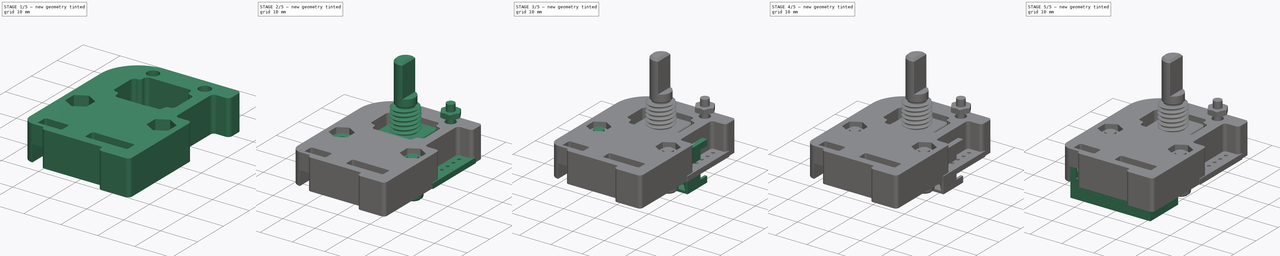
[diagram: build sequence overview — one tinted view per stage of 5, left to right]
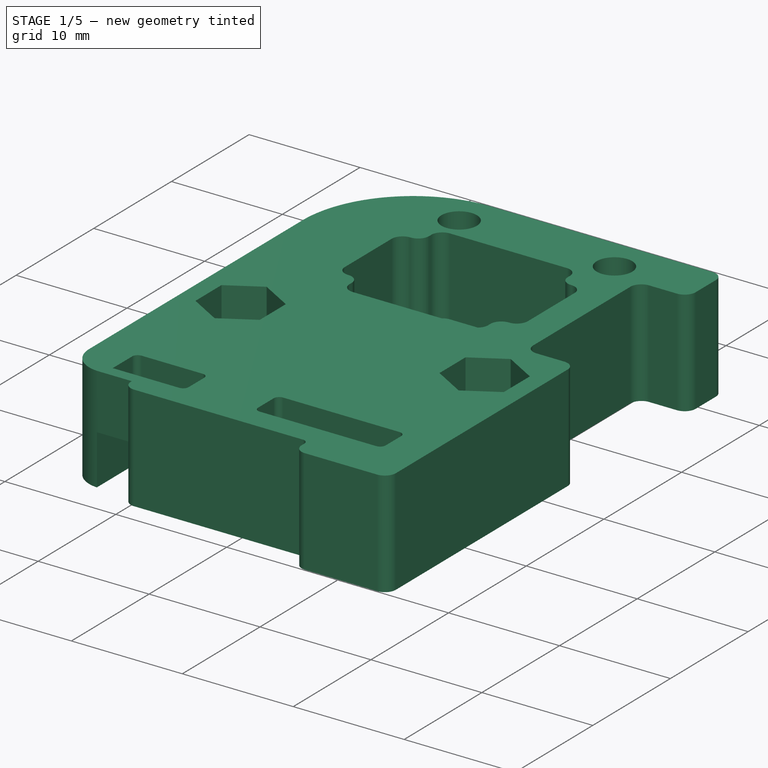
[diagram: stage 1 of 5 — iso view after this stage's code; geometry added in this stage tinted green]
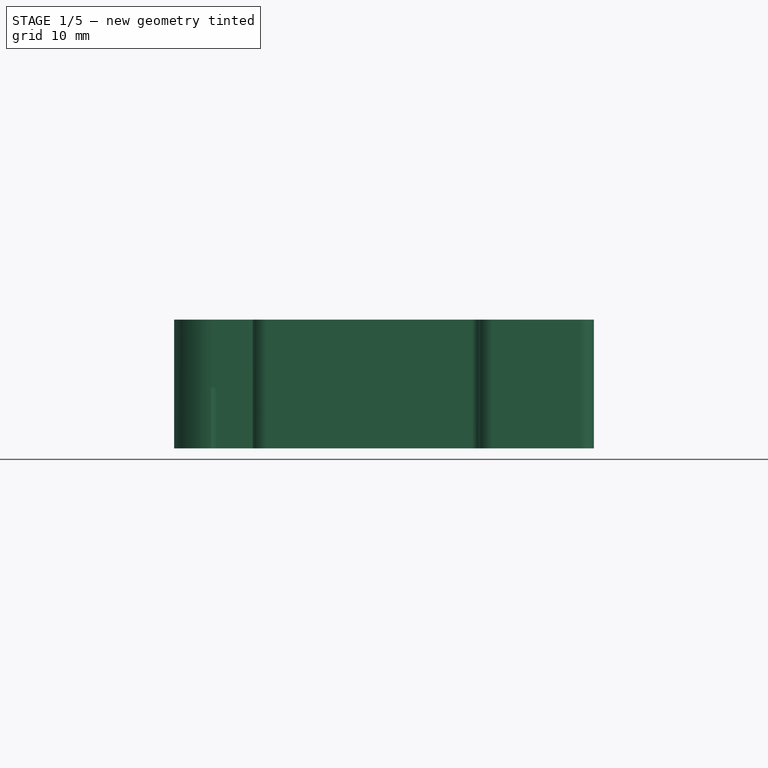
[diagram: stage 1 of 5 — front view after this stage's code; geometry added in this stage tinted green]
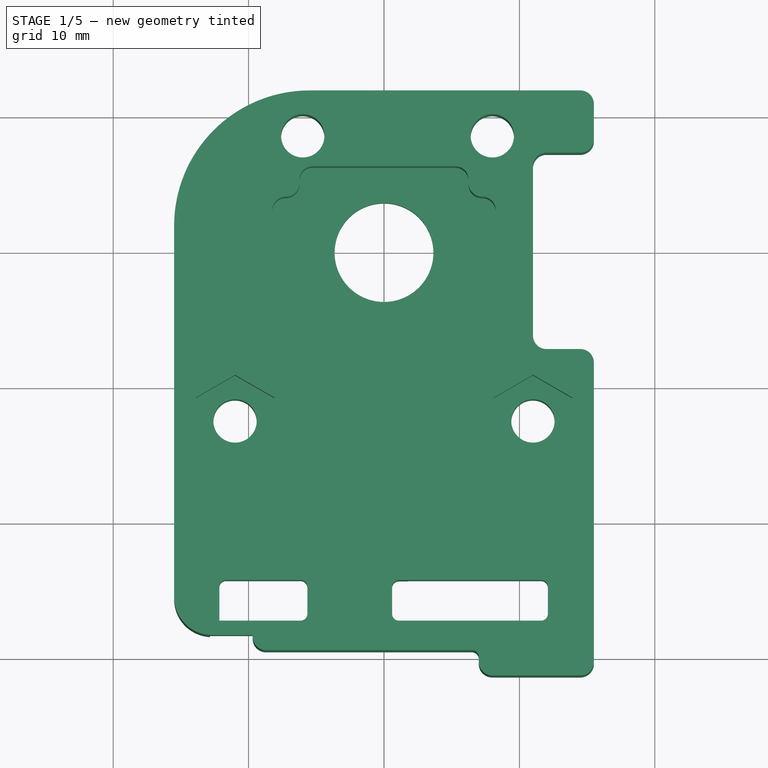
[diagram: stage 1 of 5 — top view after this stage's code; geometry added in this stage tinted green]
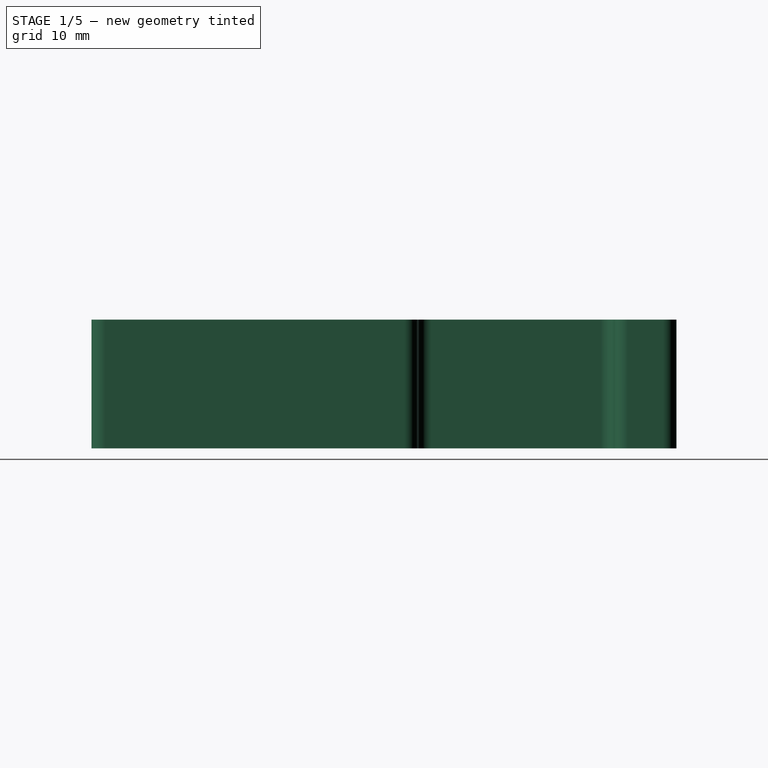
[diagram: stage 1 of 5 — right view after this stage's code; geometry added in this stage tinted green]
FCSTD DOCUMENT  (FreeCAD 0.18.4R)
Label: MJ_3d_holder_right_3p-r3-asm
License: All rights reserved
LicenseURL: http://en.wikipedia.org/wiki/All_rights_reserved
objects: Sketcher::SketchObject×17, PartDesign::Pad×9, Part::Feature×8, PartDesign::Pocket×8, Part::FeaturePython×8, PartDesign::Body×7, PartDesign::Fillet×6, PartDesign::Chamfer×4, PartDesign::Plane×2, App::DocumentObjectGroup×2, PartDesign::FeatureBase×1, Part::Part2DObjectPython×1, Part::Extrusion×1, Part::Compound×1, PartDesign::Boolean×1, App::Part×1
note: 91 computed .brp shape members not serialized (recipe doc carries the construction recipe); baked Part::Feature solids carry a one-line shape summary decoded from their .brp

FEATURE [PartDesign::Body] Body006  label="KY040_Fused_Body"
  Group = -> [Boolean]
  Origin = -> Origin007
  Placement = pos=(0,0,11.1) rot=(1,0,0;3.14159rad)
  Tip = -> Boolean
FEATURE [Sketcher::SketchObject] Sketch021  label="Sketch_body_outline001"
  MapMode = 5
  Support = -> [XY_Plane008]
  sketch-geometry (59):
    g0: Circle CenterX=0 CenterY=0 CenterZ=0 NormalX=0 NormalY=0 NormalZ=1 AngleXU=0 Radius=3.65
    g1: Circle CenterX=-11 CenterY=-12.5 CenterZ=0 NormalX=0 NormalY=0 NormalZ=1 AngleXU=0 Radius=1.6
    g2: Circle CenterX=11 CenterY=-12.5 CenterZ=0 NormalX=0 NormalY=0 NormalZ=1 AngleXU=0 Radius=1.6
    g3: Circle CenterX=-6 CenterY=8.5 CenterZ=0 NormalX=0 NormalY=0 NormalZ=1 AngleXU=0 Radius=1.6
    g4: Circle CenterX=8 CenterY=8.5 CenterZ=0 NormalX=0 NormalY=0 NormalZ=1 AngleXU=0 Radius=1.6
    g5: LineSegment [constr] StartX=11 StartY=7.25 StartZ=0 EndX=15 EndY=7.25 EndZ=0
    g6: LineSegment [constr] StartX=15 StartY=7.25 StartZ=0 EndX=15 EndY=-7.25 EndZ=0
    g7: LineSegment [constr] StartX=15 StartY=-7.25 StartZ=0 EndX=11 EndY=-7.25 EndZ=0
    g8: LineSegment [constr] StartX=11 StartY=-7.25 StartZ=0 EndX=11 EndY=7.25 EndZ=0
    g9: GeomPoint X=13 Y=-7.25 Z=0
    g10: GeomPoint X=0 Y=-22 Z=0
    g11: LineSegment [constr] StartX=-12.7 StartY=-15.65 StartZ=0 EndX=12.7 EndY=-15.65 EndZ=0
    g12: LineSegment [constr] StartX=12.7 StartY=-15.65 StartZ=0 EndX=12.7 EndY=-28.35 EndZ=0
    g13: LineSegment [constr] StartX=12.7 StartY=-28.35 StartZ=0 EndX=-12.7 EndY=-28.35 EndZ=0
    g14: LineSegment [constr] StartX=-12.7 StartY=-28.35 StartZ=0 EndX=-12.7 EndY=-15.65 EndZ=0
    g15: LineSegment StartX=15.5 StartY=-31.35 StartZ=0 EndX=15.5 EndY=-7.25 EndZ=0
    g16: LineSegment StartX=15.5 StartY=11.85 StartZ=0 EndX=-5.5 EndY=11.85 EndZ=0
    g17: LineSegment StartX=-15.5 StartY=1.85 StartZ=0 EndX=-15.5 EndY=-25.57 EndZ=0
    g18: LineSegment [constr] StartX=-7 StartY=-29.49 StartZ=0 EndX=7 EndY=-29.49 EndZ=0
    g19: LineSegment [constr] StartX=7 StartY=-29.49 StartZ=0 EndX=7 EndY=-32.29 EndZ=0
    g20: LineSegment [constr] StartX=7 StartY=-32.29 StartZ=0 EndX=-7 EndY=-32.29 EndZ=0
    g21: LineSegment [constr] StartX=-7 StartY=-32.29 StartZ=0 EndX=-7 EndY=-29.49 EndZ=0
    g22: GeomPoint X=-7 Y=-30.89 Z=0
    g23: LineSegment [constr] StartX=-6 StartY=6 StartZ=0 EndX=6 EndY=6 EndZ=0
    g24: LineSegment [constr] StartX=6 StartY=6 StartZ=0 EndX=6 EndY=-6 EndZ=0
    g25: LineSegment [constr] StartX=6 StartY=-6 StartZ=0 EndX=-6 EndY=-6 EndZ=0
    g26: LineSegment [constr] StartX=-6 StartY=-6 StartZ=0 EndX=-6 EndY=6 EndZ=0
    g27: LineSegment [constr] StartX=-10.5 StartY=10.5 StartZ=0 EndX=15.8 EndY=10.5 EndZ=0
    g28: LineSegment [constr] StartX=15.8 StartY=10.5 StartZ=0 EndX=15.8 EndY=-8.5 EndZ=0
    g29: LineSegment [constr] StartX=15.8 StartY=-8.5 StartZ=0 EndX=-10.5 EndY=-8.5 EndZ=0
    g30: LineSegment [constr] StartX=-10.5 StartY=-8.5 StartZ=0 EndX=-10.5 EndY=10.5 EndZ=0
    g31: LineSegment StartX=11 StartY=7.25 StartZ=0 EndX=15.5 EndY=7.25 EndZ=0
    g32: LineSegment StartX=15.5 StartY=-7.25 StartZ=0 EndX=11 EndY=-7.25 EndZ=0
    g33: LineSegment StartX=11 StartY=-7.25 StartZ=0 EndX=11 EndY=7.25 EndZ=0
    g34: LineSegment StartX=15.5 StartY=7.25 StartZ=0 EndX=15.5 EndY=11.85 EndZ=0
    g35: LineSegment StartX=7 StartY=-29.49 StartZ=0 EndX=7 EndY=-31.35 EndZ=0
    g36: LineSegment StartX=7 StartY=-31.35 StartZ=0 EndX=15.5 EndY=-31.35 EndZ=0
    g37: Circle [constr] CenterX=-10.16 CenterY=-25.81 CenterZ=0 NormalX=0 NormalY=0 NormalZ=1 AngleXU=0 Radius=0.5
    g38: Circle [constr] CenterX=2.54 CenterY=-25.81 CenterZ=0 NormalX=0 NormalY=0 NormalZ=1 AngleXU=0 Radius=0.5
    g39: Circle [constr] CenterX=10.16 CenterY=-25.81 CenterZ=0 NormalX=0 NormalY=0 NormalZ=1 AngleXU=0 Radius=0.5
    g40: LineSegment StartX=-5.66 StartY=-24.31 StartZ=0 EndX=-12.16 EndY=-24.31 EndZ=0
    g41: LineSegment StartX=-12.16 StartY=-24.31 StartZ=0 EndX=-12.16 EndY=-27.31 EndZ=0
    g42: LineSegment StartX=-12.16 StartY=-27.31 StartZ=0 EndX=-5.66 EndY=-27.31 EndZ=0
    g43: LineSegment StartX=-5.66 StartY=-27.31 StartZ=0 EndX=-5.66 EndY=-24.31 EndZ=0
    g44: LineSegment StartX=0.6 StartY=-24.31 StartZ=0 EndX=12.1 EndY=-24.31 EndZ=0
    g45: LineSegment StartX=12.1 StartY=-24.31 StartZ=0 EndX=12.1 EndY=-27.31 EndZ=0
    g46: LineSegment StartX=12.1 StartY=-27.31 StartZ=0 EndX=0.6 EndY=-27.31 EndZ=0
    g47: LineSegment StartX=0.6 StartY=-27.31 StartZ=0 EndX=0.6 EndY=-24.31 EndZ=0
    g48: GeomPoint X=6.35 Y=-25.81 Z=0
    g49: ArcOfCircle CenterX=-12.7 CenterY=-25.57 CenterZ=0 NormalX=0 NormalY=0 NormalZ=1 AngleXU=0 Radius=2.8 StartAngle=3.14159 EndAngle=4.71239
    g50: LineSegment StartX=-9.7 StartY=-29.49 StartZ=0 EndX=7 EndY=-29.49 EndZ=0
    g51: LineSegment StartX=-9.7 StartY=-29.49 StartZ=0 EndX=-9.7 EndY=-28.37 EndZ=0
    g52: LineSegment StartX=-9.7 StartY=-28.37 StartZ=0 EndX=-12.7 EndY=-28.37 EndZ=0
    g53: Circle [constr] CenterX=0 CenterY=-30.89 CenterZ=0 NormalX=0 NormalY=0 NormalZ=1 AngleXU=0 Radius=0.5
    g54: Circle [constr] CenterX=2.54 CenterY=-30.89 CenterZ=0 NormalX=0 NormalY=0 NormalZ=1 AngleXU=0 Radius=0.5
    g55: Circle [constr] CenterX=5.08 CenterY=-30.89 CenterZ=0 NormalX=0 NormalY=0 NormalZ=1 AngleXU=0 Radius=0.5
    g56: ArcOfCircle CenterX=-5.5 CenterY=1.85 CenterZ=0 NormalX=0 NormalY=0 NormalZ=1 AngleXU=0 Radius=10 StartAngle=1.5708 EndAngle=3.14159
    g57: GeomPoint X=-15.5 Y=-12.5 Z=0
    g58: GeomPoint X=15.5 Y=-12.5 Z=0
  constraints (157):
    c: Coincident(g0,g-1)
    c: Diameter(g0) = 7.3
    c: Diameter(g2) = 3.2
    c: Equal(g1,g2)
    c: DistanceY(g2,g-1) = 12.5
    c: DistanceX(g1,g2) = 22
    c: Symmetric(g1,g2,g-2)
    c: Horizontal(g3,g4)
    c: Equal(g2,g4)
    c: Equal(g4,g3)
    c: DistanceY(g-1,g3) = 8.5
    c: DistanceX(g3,g4) = 14
    c: DistanceX(g3,g-1) = 6
    c: Coincident(g5,g6)
    c: Coincident(g6,g7)
    c: Coincident(g7,g8)
    c: Coincident(g8,g5)
    c: Horizontal(g5)
    c: Horizontal(g7)
    c: Vertical(g8)
    c: DistanceX(g5,g5) = 4
    c: DistanceY(g6,g6) = 14.5
    c: Symmetric(g5,g6,g-1)
    c: DistanceX(g-1,g9) = 13
    c: Symmetric(g7,g6,g9)
    c: PointOnObject(g10,g-2)
    c: DistanceY(g10,g0) = 22
    c: Coincident(g11,g12)
    c: Coincident(g12,g13)
    c: Coincident(g13,g14)
    c: Coincident(g14,g11)
    c: Horizontal(g11)
    c: Vertical(g12)
    c: Vertical(g14)
    c: DistanceX(g13,g13) = 25.4
    c: DistanceY(g12,g12) = 12.7
    c: Horizontal(g13)
    c: Symmetric(g11,g12,g10)
    c: Coincident(g36,g15)
    c: Coincident(g34,g16)
    c: Vertical(g15)
    c: Vertical(g17)
    c: DistanceY(g36,g12) = 3
    c: Coincident(g18,g19)
    c: Coincident(g19,g20)
    c: Coincident(g20,g21)
    c: Coincident(g21,g18)
    c: Vertical(g19)
    c: Vertical(g21)
    c: DistanceY(g19,g19) = 2.8
    c: DistanceX(g18,g18) = 14
    c: DistanceY(g22,g13) = 2.54
    c: Symmetric(g18,g20,g22)
    c: Coincident(g23,g24)
    c: Coincident(g24,g25)
    c: Coincident(g25,g26)
    c: Coincident(g26,g23)
    c: Horizontal(g23)
    c: Horizontal(g25)
    c: Vertical(g24)
    c: Vertical(g26)
    c: DistanceX(g23,g23) = 12
    c: Equal(g24,g23)
    c: Symmetric(g23,g24,g0)
    c: Coincident(g27,g28)
    c: Coincident(g28,g29)
    c: Coincident(g29,g30)
    c: Coincident(g30,g27)
    c: Horizontal(g27)
    c: Horizontal(g29)
    c: Vertical(g28)
    c: Vertical(g30)
    c: DistanceY(g28,g28) = 19
    c: DistanceX(g27,g27) = 26.3
    c: DistanceX(g27,g-1) = 10.5
    c: DistanceY(g-1,g27) = 10.5
    c: Coincident(g32,g33)
    c: Coincident(g33,g31)
    c: Horizontal(g31)
    c: Horizontal(g32)
    c: Vertical(g33)
    c: Coincident(g31,g5)
    c: Equal(g6,g33)
    c: Tangent(g15,g34)
    c: Vertical(g35)
    c: PointOnObject(g36,g19)
    c: Coincident(g32,g15)
    c: Coincident(g31,g34)
    c: Horizontal(g39,g38)
    c: Horizontal(g38,g37)
    c: Equal(g39,g38)
    c: Equal(g38,g37)
    c: Diameter(g37) = 1
    c: DistanceY(g37,g10) = 3.81
    c: DistanceX(g38,g39) = 7.62
    c: DistanceX(g10,g38) = 2.54
    c: DistanceX(g37,g-1) = 10.16
    c: Coincident(g40,g41)
    c: Coincident(g41,g42)
    c: Coincident(g42,g43)
    c: Coincident(g43,g40)
    c: Horizontal(g40)
    c: Horizontal(g42)
    c: Vertical(g41)
    c: Vertical(g43)
    c: Coincident(g44,g45)
    c: Coincident(g45,g46)
    c: Coincident(g46,g47)
    c: Coincident(g47,g44)
    c: Horizontal(g44)
    c: Horizontal(g46)
    c: Vertical(g45)
    c: Vertical(g47)
    c: Equal(g47,g43)
    c: DistanceY(g45,g45) = 3
    c: Symmetric(g38,g39,g48)
    c: Symmetric(g44,g45,g48)
    c: Horizontal(g44,g40)
    c: DistanceX(g46,g46) = 11.5
    c: DistanceX(g42,g42) = 6.5
    c: DistanceX(g40,g37) = 2
    c: DistanceY(g34,g34) = 4.6
    c: Tangent(g17,g49) = -1.5708
    c: Horizontal(g35,g18)
    c: Coincident(g35,g36)
    c: Symmetric(g20,g19,g-2)
    c: Horizontal(g18)
    c: PointOnObject(g50,g18)
    c: Coincident(g50,g35)
    c: Horizontal(g36)
    c: Vertical(g49,g49)
    c: Coincident(g51,g50)
    c: Vertical(g51)
    c: DistanceY(g51,g51) = 1.12
    c: Coincident(g52,g51)
    c: Horizontal(g52)
    c: DistanceX(g52,g52) = 3
    c: Coincident(g49,g52)
    c: Radius(g49) = 2.8
    c: PointOnObject(g53,g-2)
    c: Equal(g38,g53)
    c: Equal(g53,g54)
    c: Equal(g54,g55)
    c: Horizontal(g53,g54)
    c: Horizontal(g54,g55)
    c: DistanceX(g53,g54) = 2.54
    c: DistanceX(g54,g55) = 2.54
    c: DistanceY(g54,g38) = 5.08
    c: DistanceX(g17,g15) = 31
    c: Tangent(g17,g56) = -1.5708
    c: Tangent(g16,g56) = -1.5708
    c: Radius(g56) = 10
    c: Horizontal(g16)
    c: PointOnObject(g57,g17)
    c: PointOnObject(g58,g15)
    c: Horizontal(g2,g58)
    c: Symmetric(g57,g58,g-2)
FEATURE [PartDesign::Pad] Pad009  label="BodyPad001"
  Length = 9.5
  Length2 = 100
  Profile = -> Sketch021
  Type = 0
FEATURE [Sketcher::SketchObject] Sketch019  label="Sketch_rotary_7mm_pocket001"
  MapMode = 5
  Placement = pos=(0,0,9.5) rot=(0,0,1;0rad)
  Support = -> [Pad009]
  sketch-geometry (12):
    g0: LineSegment StartX=8.25 StartY=-4 StartZ=0 EndX=6.25 EndY=-4 EndZ=0
    g1: LineSegment StartX=-8.25 StartY=-4 StartZ=0 EndX=-8.25 EndY=4 EndZ=0
    g2: LineSegment StartX=-8.25 StartY=4 StartZ=0 EndX=-6.25 EndY=4 EndZ=0
    g3: LineSegment StartX=8.25 StartY=4 StartZ=0 EndX=8.25 EndY=-4 EndZ=0
    g4: LineSegment StartX=-6.25 StartY=6.25 StartZ=0 EndX=6.25 EndY=6.25 EndZ=0
    g5: LineSegment StartX=6.25 StartY=6.25 StartZ=0 EndX=6.25 EndY=4 EndZ=0
    g6: LineSegment StartX=6.25 StartY=-6.25 StartZ=0 EndX=-6.25 EndY=-6.25 EndZ=0
    g7: LineSegment StartX=-6.25 StartY=-6.25 StartZ=0 EndX=-6.25 EndY=-4 EndZ=0
    g8: LineSegment StartX=6.25 StartY=4 StartZ=0 EndX=8.25 EndY=4 EndZ=0
    g9: LineSegment StartX=-6.25 StartY=-4 StartZ=0 EndX=-8.25 EndY=-4 EndZ=0
    g10: LineSegment StartX=-6.25 StartY=4 StartZ=0 EndX=-6.25 EndY=6.25 EndZ=0
    g11: LineSegment StartX=6.25 StartY=-4 StartZ=0 EndX=6.25 EndY=-6.25 EndZ=0
  constraints (30):
    c: Coincident(g9,g1)
    c: Coincident(g1,g2)
    c: Coincident(g8,g3)
    c: Coincident(g3,g0)
    c: Horizontal(g0)
    c: Horizontal(g2)
    c: Vertical(g1)
    c: Vertical(g3)
    c: DistanceX(g2,g8) = 16.5
    c: DistanceY(g1,g1) = 8
    c: Symmetric(g0,g1,g-1)
    c: Coincident(g4,g5)
    c: Coincident(g11,g6)
    c: Coincident(g6,g7)
    c: Coincident(g10,g4)
    c: Horizontal(g4)
    c: Horizontal(g6)
    c: Vertical(g5)
    c: Vertical(g7)
    c: DistanceX(g4,g4) = 12.5
    c: DistanceY(g7,g10) = 12.5
    c: Symmetric(g4,g11,g-1)
    c: Tangent(g2,g8)
    c: Tangent(g0,g9)
    c: Coincident(g7,g9)
    c: Coincident(g10,g2)
    c: Tangent(g7,g10)
    c: Coincident(g5,g8)
    c: Coincident(g11,g0)
    c: Tangent(g5,g11)
FEATURE [PartDesign::Pocket] Pocket012  label="RotaryPocket001"
  BaseFeature = -> Pad009
  Length = 7
  Length2 = 100
  Profile = -> Sketch019
  Type = 0
FEATURE [Sketcher::SketchObject] Sketch020  label="Sketch_hexnut_3mm_pockets001"
  MapMode = 5
  Placement = pos=(0,0,9.5) rot=(0,0,1;0rad)
  Support = -> [Pocket012]
  sketch-geometry (14):
    g0: LineSegment StartX=-8.1 StartY=-14.1743 StartZ=0 EndX=-8.1 EndY=-10.8257 EndZ=0
    g1: LineSegment StartX=-8.1 StartY=-10.8257 StartZ=0 EndX=-11 EndY=-9.15137 EndZ=0
    g2: LineSegment StartX=-11 StartY=-9.15137 StartZ=0 EndX=-13.9 EndY=-10.8257 EndZ=0
    g3: LineSegment StartX=-13.9 StartY=-10.8257 StartZ=0 EndX=-13.9 EndY=-14.1743 EndZ=0
    g4: LineSegment StartX=-13.9 StartY=-14.1743 StartZ=0 EndX=-11 EndY=-15.8486 EndZ=0
    g5: LineSegment StartX=-11 StartY=-15.8486 StartZ=0 EndX=-8.1 EndY=-14.1743 EndZ=0
    g6: Circle [constr] CenterX=-11 CenterY=-12.5 CenterZ=0 NormalX=0 NormalY=0 NormalZ=1 AngleXU=0 Radius=3.34863
    g7: LineSegment StartX=13.9 StartY=-14.1743 StartZ=0 EndX=13.9 EndY=-10.8257 EndZ=0
    g8: LineSegment StartX=13.9 StartY=-10.8257 StartZ=0 EndX=11 EndY=-9.15137 EndZ=0
    g9: LineSegment StartX=11 StartY=-9.15137 StartZ=0 EndX=8.1 EndY=-10.8257 EndZ=0
    g10: LineSegment StartX=8.1 StartY=-10.8257 StartZ=0 EndX=8.1 EndY=-14.1743 EndZ=0
    g11: LineSegment StartX=8.1 StartY=-14.1743 StartZ=0 EndX=11 EndY=-15.8486 EndZ=0
    g12: LineSegment StartX=11 StartY=-15.8486 StartZ=0 EndX=13.9 EndY=-14.1743 EndZ=0
    g13: Circle [constr] CenterX=11 CenterY=-12.5 CenterZ=0 NormalX=0 NormalY=0 NormalZ=1 AngleXU=0 Radius=3.34863
  constraints (33):
    c: Coincident(g0,g1)
    c: Coincident(g1,g2)
    c: Coincident(g2,g3)
    c: Coincident(g3,g4)
    c: Coincident(g4,g5)
    c: Coincident(g5,g0)
    c: Equal(g0, g1-g5) x5
    c: PointOnObject(g0,g6)
    c: PointOnObject(g1,g6)
    c: PointOnObject(g2,g6)
    c: PointOnObject(g3,g6)
    c: PointOnObject(g4,g6)
    c: PointOnObject(g5,g6)
    c: Coincident(g7,g8)
    c: Coincident(g8,g9)
    c: Coincident(g9,g10)
    c: Coincident(g10,g11)
    c: Coincident(g11,g12)
    c: Coincident(g12,g7)
    c: Equal(g7, g8-g12) x5
    c: PointOnObject(g7,g13)
    c: PointOnObject(g8,g13)
    c: PointOnObject(g9,g13)
    c: PointOnObject(g10,g13)
    c: PointOnObject(g11,g13)
    c: PointOnObject(g12,g13)
    c: DistanceX(g6,g13) = 22
    c: Symmetric(g6,g13,g-2)
    c: DistanceY(g6,g-1) = 12.5
    c: DistanceX(g3,g0) = 5.8
    c: Vertical(g3)
    c: DistanceX(g10,g7) = 5.8
    c: Vertical(g7)
FEATURE [PartDesign::Pocket] Pocket010
  BaseFeature = -> Pocket012
  Length = 3.5
  Length2 = 100
  Profile = -> Sketch020
  Type = 0
FEATURE [Sketcher::SketchObject] Sketch022  label="Sketch_Grayhill_3mm_pocket001"
  MapMode = 5
  Placement = pos=(0,0,0) rot=(1,0,0;3.14159rad)
  Support = -> [Pocket010]
  sketch-geometry (5):
    g0: LineSegment StartX=12.85 StartY=15.5 StartZ=0 EndX=-12.85 EndY=15.5 EndZ=0
    g1: LineSegment StartX=-12.85 StartY=15.5 StartZ=0 EndX=-12.85 EndY=28.5 EndZ=0
    g2: LineSegment StartX=-12.85 StartY=28.5 StartZ=0 EndX=12.85 EndY=28.5 EndZ=0
    g3: LineSegment StartX=12.85 StartY=28.5 StartZ=0 EndX=12.85 EndY=15.5 EndZ=0
    g4: GeomPoint X=0 Y=22 Z=0
  constraints (13):
    c: Coincident(g0,g1)
    c: Coincident(g1,g2)
    c: Coincident(g2,g3)
    c: Coincident(g3,g0)
    c: Horizontal(g0)
    c: Horizontal(g2)
    c: Vertical(g1)
    c: Vertical(g3)
    c: DistanceX(g2,g2) = 25.7
    c: DistanceY(g3,g3) = 13
    c: PointOnObject(g4,g-2)
    c: DistanceY(g-1,g4) = 22
    c: Symmetric(g0,g1,g4)
FEATURE [PartDesign::Pocket] Pocket011
  BaseFeature = -> Pocket010
  Length = 3
  Length2 = 100
  Profile = -> Sketch022
  Type = 0
FEATURE [Sketcher::SketchObject] Sketch023  label="Sketch_Grayhill_1_4mm_pocket001"
  MapMode = 5
  Placement = pos=(0,0,3) rot=(1,0,0;3.14159rad)
  Support = -> [Pocket011]
  sketch-geometry (34):
    g0: LineSegment [constr] StartX=12.85 StartY=15.5 StartZ=0 EndX=-12.85 EndY=15.5 EndZ=0
    g1: LineSegment [constr] StartX=-12.85 StartY=15.5 StartZ=0 EndX=-12.85 EndY=28.5 EndZ=0
    g2: LineSegment [constr] StartX=-12.85 StartY=28.5 StartZ=0 EndX=12.85 EndY=28.5 EndZ=0
    g3: LineSegment [constr] StartX=12.85 StartY=28.5 StartZ=0 EndX=12.85 EndY=15.5 EndZ=0
    g4: GeomPoint X=0 Y=22 Z=0
    g5: LineSegment [constr] StartX=12.85 StartY=20.5 StartZ=0 EndX=-12.85 EndY=20.5 EndZ=0
    g6: LineSegment [constr] StartX=-12.85 StartY=20.5 StartZ=0 EndX=-12.85 EndY=23.5 EndZ=0
    g7: LineSegment [constr] StartX=-12.85 StartY=23.5 StartZ=0 EndX=12.85 EndY=23.5 EndZ=0
    g8: LineSegment [constr] StartX=12.85 StartY=23.5 StartZ=0 EndX=12.85 EndY=20.5 EndZ=0
    g9: LineSegment [constr] StartX=1.5 StartY=15.5 StartZ=0 EndX=-1.5 EndY=15.5 EndZ=0
    g10: LineSegment [constr] StartX=-1.5 StartY=15.5 StartZ=0 EndX=-1.5 EndY=28.5 EndZ=0
    g11: LineSegment [constr] StartX=-1.5 StartY=28.5 StartZ=0 EndX=1.5 EndY=28.5 EndZ=0
    g12: LineSegment [constr] StartX=1.5 StartY=28.5 StartZ=0 EndX=1.5 EndY=15.5 EndZ=0
    g13: Circle CenterX=0 CenterY=22 CenterZ=0 NormalX=0 NormalY=0 NormalZ=1 AngleXU=0 Radius=1.8
    g14: LineSegment StartX=1.5 StartY=15.5 StartZ=0 EndX=12.85 EndY=15.5 EndZ=0
    g15: LineSegment StartX=12.85 StartY=15.5 StartZ=0 EndX=12.85 EndY=20.5 EndZ=0
    g16: LineSegment StartX=12.85 StartY=20.5 StartZ=0 EndX=3.5 EndY=20.5 EndZ=0
    g17: LineSegment StartX=1.5 StartY=18.5 StartZ=0 EndX=1.5 EndY=15.5 EndZ=0
    g18: LineSegment StartX=-1.5 StartY=15.5 StartZ=0 EndX=-12.85 EndY=15.5 EndZ=0
    g19: LineSegment StartX=-12.85 StartY=15.5 StartZ=0 EndX=-12.85 EndY=20.5 EndZ=0
    g20: LineSegment StartX=-12.85 StartY=20.5 StartZ=0 EndX=-3.5 EndY=20.5 EndZ=0
    g21: LineSegment StartX=-1.5 StartY=18.5 StartZ=0 EndX=-1.5 EndY=15.5 EndZ=0
    g22: LineSegment StartX=12.85 StartY=23.5 StartZ=0 EndX=3.5 EndY=23.5 EndZ=0
    g23: LineSegment StartX=1.5 StartY=25.5 StartZ=0 EndX=1.5 EndY=28.5 EndZ=0
    g24: LineSegment StartX=1.5 StartY=28.5 StartZ=0 EndX=12.85 EndY=28.5 EndZ=0
    g25: LineSegment StartX=12.85 StartY=28.5 StartZ=0 EndX=12.85 EndY=23.5 EndZ=0
    g26: LineSegment StartX=-12.85 StartY=23.5 StartZ=0 EndX=-3.5 EndY=23.5 EndZ=0
    g27: LineSegment StartX=-1.5 StartY=25.5 StartZ=0 EndX=-1.5 EndY=28.5 EndZ=0
    g28: LineSegment StartX=-1.5 StartY=28.5 StartZ=0 EndX=-12.85 EndY=28.5 EndZ=0
    g29: LineSegment StartX=-12.85 StartY=28.5 StartZ=0 EndX=-12.85 EndY=23.5 EndZ=0
    g30: ArcOfCircle CenterX=3.5 CenterY=18.5 CenterZ=0 NormalX=0 NormalY=0 NormalZ=1 AngleXU=0 Radius=2 StartAngle=1.5708 EndAngle=3.14159
    g31: ArcOfCircle CenterX=-3.5 CenterY=18.5 CenterZ=0 NormalX=0 NormalY=0 NormalZ=1 AngleXU=0 Radius=2 StartAngle=-9e-16 EndAngle=1.5708
    g32: ArcOfCircle CenterX=-3.5 CenterY=25.5 CenterZ=0 NormalX=0 NormalY=0 NormalZ=1 AngleXU=0 Radius=2 StartAngle=4.71239 EndAngle=6.28319
    g33: ArcOfCircle CenterX=3.5 CenterY=25.5 CenterZ=0 NormalX=0 NormalY=0 NormalZ=1 AngleXU=0 Radius=2 StartAngle=3.14159 EndAngle=4.71239
  constraints (85):
    c: Coincident(g0,g1)
    c: Coincident(g1,g2)
    c: Coincident(g2,g3)
    c: Coincident(g3,g0)
    c: Horizontal(g0)
    c: Horizontal(g2)
    c: Vertical(g1)
    c: Vertical(g3)
    c: DistanceX(g0,g0) = 25.7
    c: DistanceY(g3,g3) = 13
    c: PointOnObject(g4,g-2)
    c: DistanceY(g-1,g4) = 22
    c: Symmetric(g0,g1,g4)
    c: Coincident(g5,g6)
    c: Coincident(g6,g7)
    c: Coincident(g7,g8)
    c: Coincident(g8,g5)
    c: Horizontal(g5)
    c: Horizontal(g7)
    c: Vertical(g6)
    c: Vertical(g8)
    c: PointOnObject(g5,g3)
    c: Symmetric(g5,g6,g4)
    c: DistanceY(g5,g7) = 3
    c: Coincident(g9,g10)
    c: Coincident(g10,g11)
    c: Coincident(g11,g12)
    c: Coincident(g12,g9)
    c: Horizontal(g9)
    c: Horizontal(g11)
    c: Vertical(g10)
    c: Vertical(g12)
    c: PointOnObject(g9,g0)
    c: Symmetric(g9,g10,g4)
    c: DistanceX(g10,g11) = 3
    c: Coincident(g13,g4)
    c: Diameter(g13) = 3.6
    c: Coincident(g14,g15)
    c: Coincident(g15,g16)
    c: Coincident(g17,g14)
    c: Horizontal(g14)
    c: Horizontal(g16)
    c: Vertical(g15)
    c: Vertical(g17)
    c: Coincident(g14,g9)
    c: Coincident(g15,g5)
    c: Coincident(g18,g19)
    c: Coincident(g19,g20)
    c: Coincident(g21,g18)
    c: Horizontal(g18)
    c: Horizontal(g20)
    c: Vertical(g19)
    c: Vertical(g21)
    c: Coincident(g18,g9)
    c: Coincident(g19,g5)
    c: Coincident(g23,g24)
    c: Coincident(g24,g25)
    c: Coincident(g25,g22)
    c: Horizontal(g22)
    c: Horizontal(g24)
    c: Vertical(g23)
    c: Vertical(g25)
    c: Coincident(g22,g7)
    c: Coincident(g23,g11)
    c: Coincident(g27,g28)
    c: Coincident(g28,g29)
    c: Coincident(g29,g26)
    c: Horizontal(g26)
    c: Horizontal(g28)
    c: Vertical(g27)
    c: Vertical(g29)
    c: Coincident(g26,g6)
    c: Coincident(g27,g10)
    c: Tangent(g17,g30) = -1.5708
    c: Tangent(g16,g30) = -1.5708
    c: Tangent(g21,g31) = 1.5708
    c: Tangent(g20,g31) = 1.5708
    c: Tangent(g26,g32) = -1.5708
    c: Tangent(g27,g32) = -1.5708
    c: Tangent(g22,g33) = 1.5708
    c: Tangent(g23,g33) = 1.5708
    c: Radius(g30) = 2
    c: Equal(g30,g31)
    c: Equal(g31,g32)
    c: Equal(g32,g33)
FEATURE [PartDesign::Pocket] Pocket009
  BaseFeature = -> Pocket011
  Length = 1.5
  Length2 = 100
  Profile = -> Sketch023
  Type = 0
FEATURE [PartDesign::Fillet] Fillet006
  Base = -> Pocket009 [Edge112,Edge113,Edge114,Edge116,Edge95,Edge11,Edge1,Edge115]
  BaseFeature = -> Pocket009
  Radius = 1
FEATURE [PartDesign::Fillet] Fillet007
  Base = -> Fillet006 [Edge168,Edge164,Edge160,Edge152,Edge166,Edge170,Edge162,Edge158,Edge154,Edge150,Edge156,Edge149]
  BaseFeature = -> Fillet006
  Radius = 0.99
FEATURE [PartDesign::Fillet] Fillet008
  Base = -> Fillet007 [Edge236,Edge273,Edge177,Edge292,Edge263,Edge281,Edge180,Edge173,Edge227,Edge291,Edge187,Edge270,Edge223,Edge288,Edge276,Edge259,Edge185,Edge183,Edge284,Edge182,Edge172,Edge237,Edge274,Edge119]
  BaseFeature = -> Fillet007
  Radius = 0.5
FEATURE [PartDesign::Body] Body007  label="3d_holder_right-r3"
  Group = -> [Sketch023,Sketch021,Pad009,Sketch020,Sketch019,Sketch022,Pocket012,Pocket010,Pocket011,Pocket009,Fillet006,Fillet007,Fillet008]
  Origin = -> Origin008
  Tip = -> Fillet008
FEATURE [App::DocumentObjectGroup] Group  label="3d_holder_right-asm_group"
  Group = -> [Compound,Screw,Screw001,Nut,Nut001,Screw002,Screw003,Nut002,Nut003,Body006,Body007]
FEATURE [App::Part] Part  label="3d_holder_right_r3_asm"
  Group = -> [Compound,Body006,Sketch017,Extrude,Nut002,ShapeString,Body007,Part__Feature002,Body005,Body004,Nut003,Body003,Body001,Nut,Screw001,Screw,Pad007,Screw003,Nut001,Part__Feature,Part__Feature001,Screw002,Body002,Group,Part__Feature005,Part__Feature006,Part__Feature007,Group001]
  Origin = -> Origin
note: 1 file-system path scrubbed to <path> (originals preserved in the JSON sidecar)
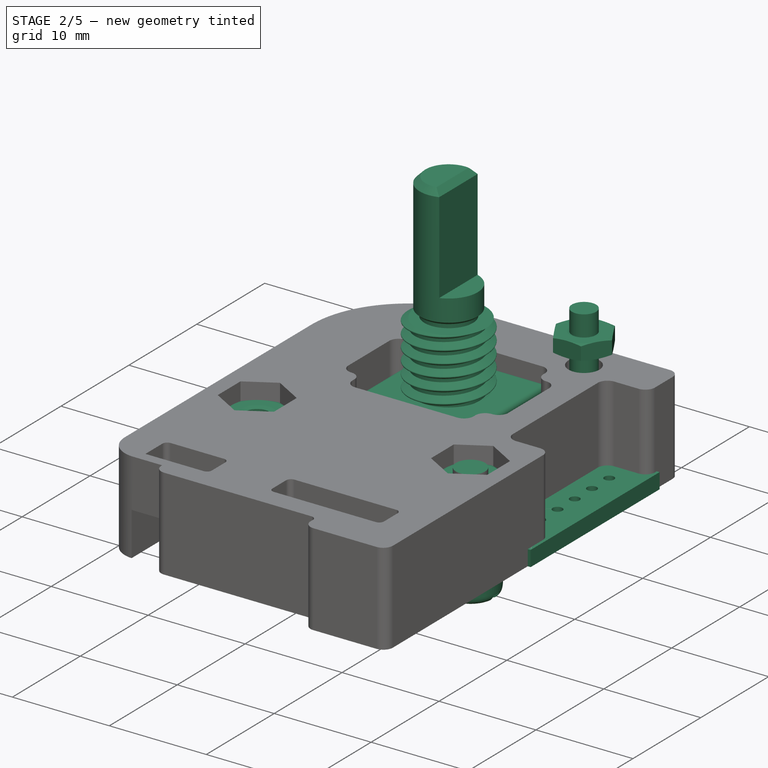
[diagram: stage 2 of 5 — iso view after this stage's code; geometry added in this stage tinted green]
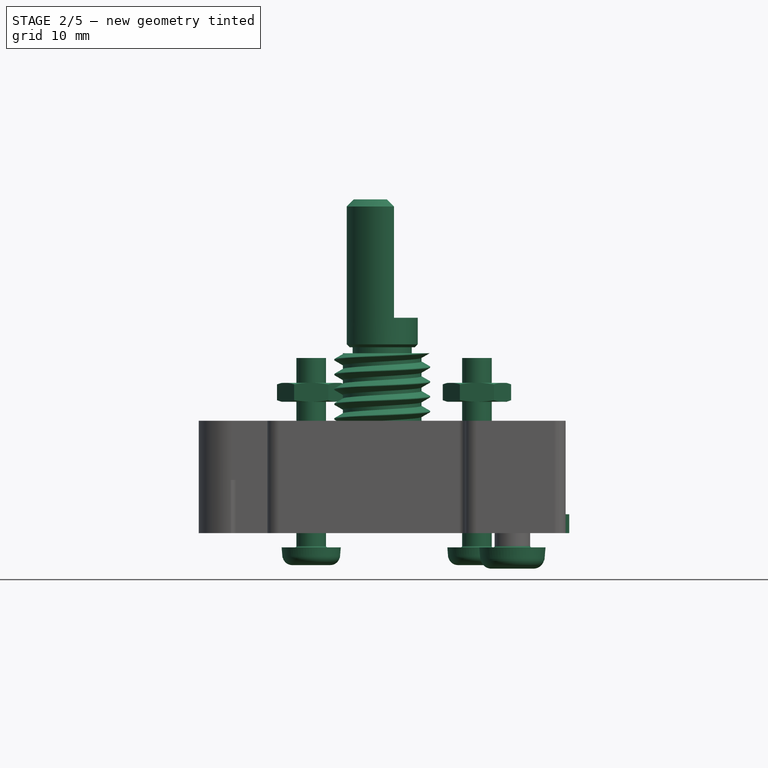
[diagram: stage 2 of 5 — front view after this stage's code; geometry added in this stage tinted green]
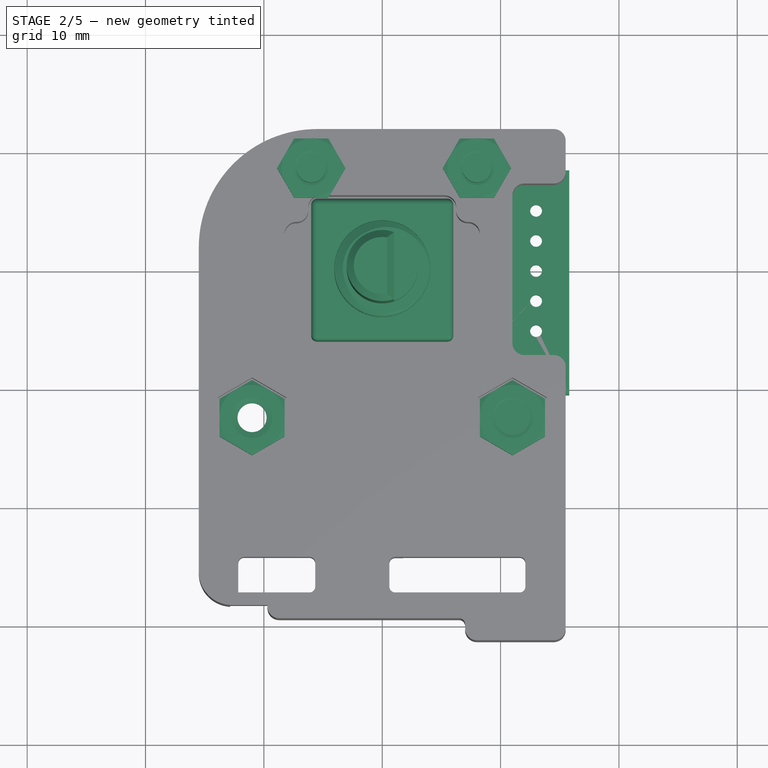
[diagram: stage 2 of 5 — top view after this stage's code; geometry added in this stage tinted green]
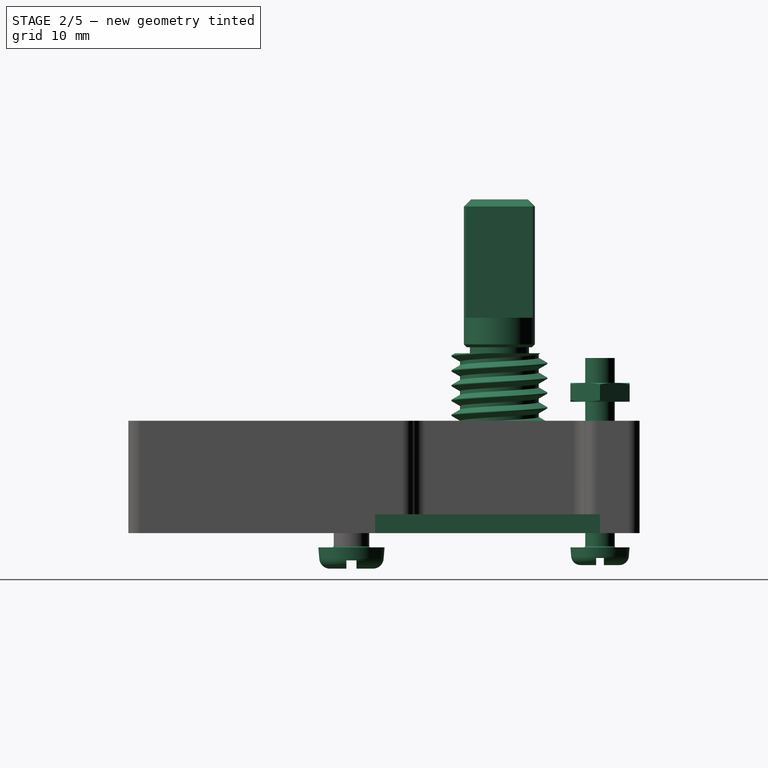
[diagram: stage 2 of 5 — right view after this stage's code; geometry added in this stage tinted green]
FEATURE [Part::FeaturePython] Screw001  label="M3x10-Screw001"  # Fasteners workbench fastener (typed FeaturePython)
  Placement = pos=(11,-12.5,-1.2) rot=(0,1,0;3.14159rad)
  diameter = 4
  invert = false
  length = 3
  lengthCustom = 10
  matchOuter = false
  offset = 0
  thread = false
  type = 11
FEATURE [Part::FeaturePython] Nut  label="M3-Nut"  # Fasteners workbench fastener (typed FeaturePython)
  Placement = pos=(-11,-12.5,6.1) rot=(0,0,1;0.523599rad)
  diameter = 4
  invert = false
  matchOuter = false
  offset = 0
  thread = false
  type = 6
FEATURE [Part::FeaturePython] Nut001  label="M3-Nut001"  # Fasteners workbench fastener (typed FeaturePython)
  Placement = pos=(11,-12.5,6.1) rot=(0,0,1;0.523599rad)
  diameter = 4
  invert = false
  matchOuter = false
  offset = 0
  thread = false
  type = 6
FEATURE [Part::FeaturePython] Screw002  label="M2.5x16-Screw"  # Fasteners workbench fastener (typed FeaturePython)
  Placement = pos=(-6,8.5,-1.2) rot=(0,1,0;3.14159rad)
  diameter = 3
  invert = false
  length = 7
  lengthCustom = 16
  matchOuter = false
  offset = 0
  thread = false
  type = 11
FEATURE [Part::FeaturePython] Screw003  label="M2.5x16-Screw001"  # Fasteners workbench fastener (typed FeaturePython)
  Placement = pos=(8,8.5,-1.2) rot=(0,1,0;3.14159rad)
  diameter = 3
  invert = false
  length = 7
  lengthCustom = 16
  matchOuter = false
  offset = 0
  thread = false
  type = 11
FEATURE [Part::FeaturePython] Nut002  label="M2.5-Nut"  # Fasteners workbench fastener (typed FeaturePython)
  Placement = pos=(-6,8.5,11.1) rot=(0,0,1;0rad)
  diameter = 3
  invert = false
  matchOuter = false
  offset = 0
  thread = false
  type = 6
FEATURE [Part::FeaturePython] Nut003  label="M2.5-Nut001"  # Fasteners workbench fastener (typed FeaturePython)
  Placement = pos=(8,8.5,11.1) rot=(0,0,1;0rad)
  diameter = 3
  invert = false
  matchOuter = false
  offset = 0
  thread = false
  type = 6
FEATURE [Part::Feature] Part__Feature005  label="PinHeader_1x03_P254mm_Vertical"
  Placement = pos=(0,-30.89,0) rot=(0,0,1;1.5708rad)
  shape: bbox 7.62 x 2.54 x 11.54 mm, 76 faces (baked)
FEATURE [Part::Feature] Part__Feature006  label="PinSocket_1x05_P254mm_Vertical"
  Placement = pos=(13,5.08,9.5) rot=(0,1,0;3.14159rad)
  shape: bbox 2.54 x 12.7 x 10.1 mm, 165 faces (baked)
FEATURE [Part::Feature] Part__Feature007  label="PinHeader_1x05_P254mm_Vertical"
  Placement = pos=(13,5.08,0) rot=(0,0,1;0rad)
  shape: bbox 2.54 x 12.7 x 11.54 mm, 124 faces (baked)
FEATURE [App::DocumentObjectGroup] Group001  label="Rotary_connector_9.5mm"
  Group = -> [Part__Feature007,Part__Feature006]
FEATURE [Part::Feature] Part__Feature008  label="KY040_Body"
  shape: bbox 26.3 x 19 x 28.2 mm, 42 faces (baked)
FEATURE [Part::Feature] Part__Feature009  label="KY040_M8x7.0-ScrewTap"
  Placement = pos=(0,0,15.2) rot=(0,0,1;0rad)
  shape: bbox 10.62 x 11.9 x 10 mm, 30 faces (baked)
FEATURE [PartDesign::Boolean] Boolean
  Group = -> [Part__Feature008,Part__Feature009]
  Type = 0
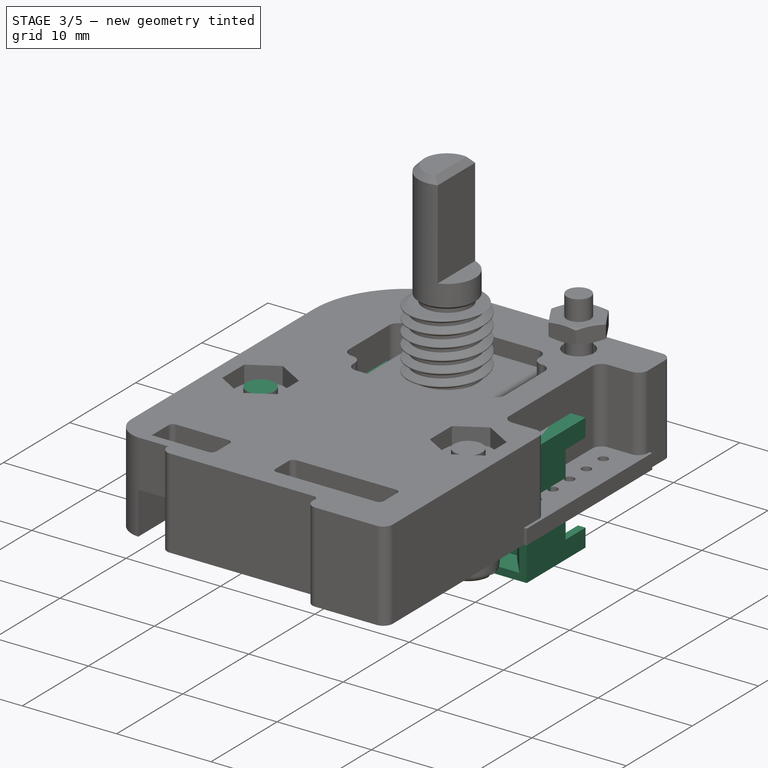
[diagram: stage 3 of 5 — iso view after this stage's code; geometry added in this stage tinted green]
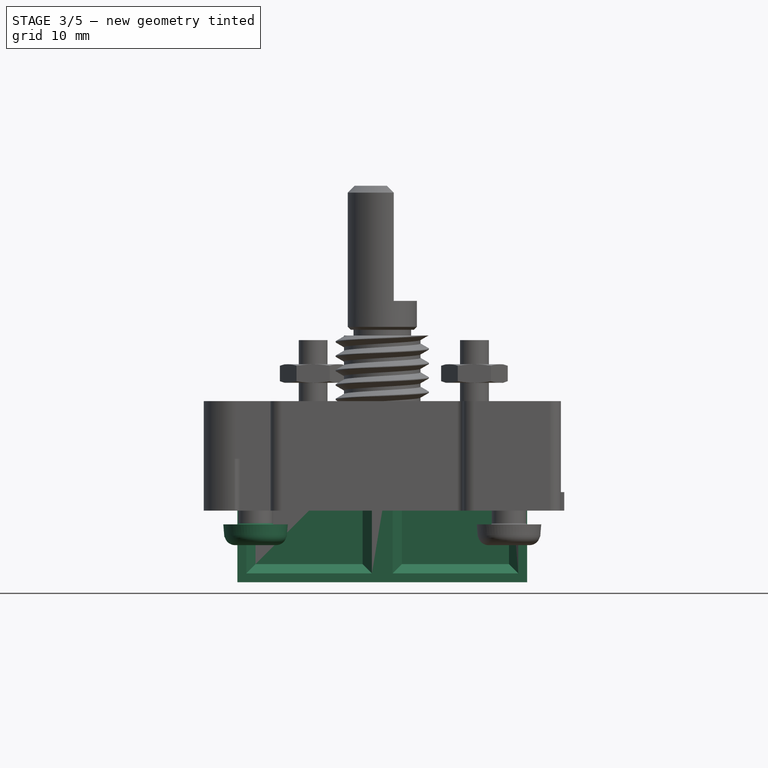
[diagram: stage 3 of 5 — front view after this stage's code; geometry added in this stage tinted green]
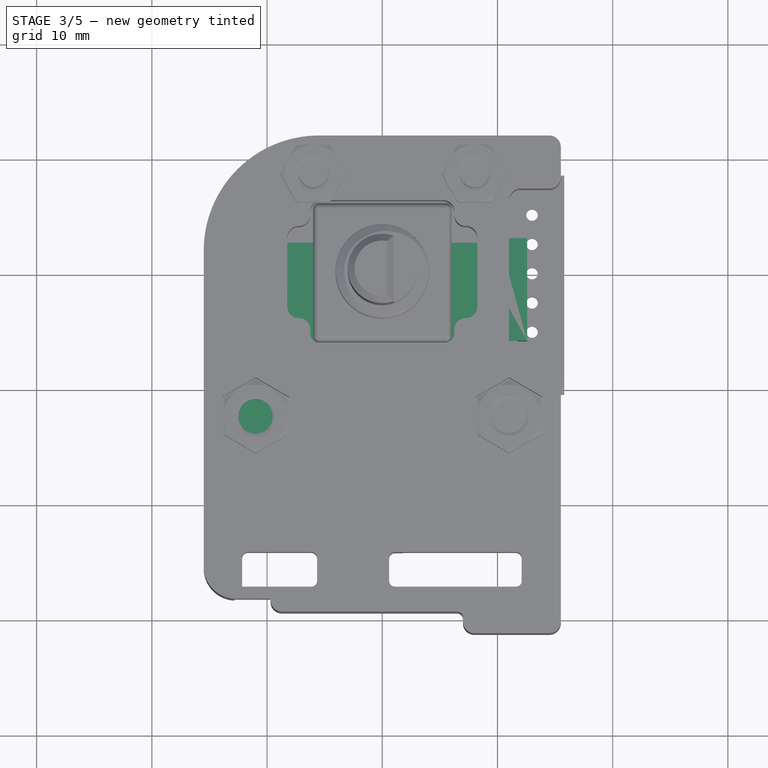
[diagram: stage 3 of 5 — top view after this stage's code; geometry added in this stage tinted green]
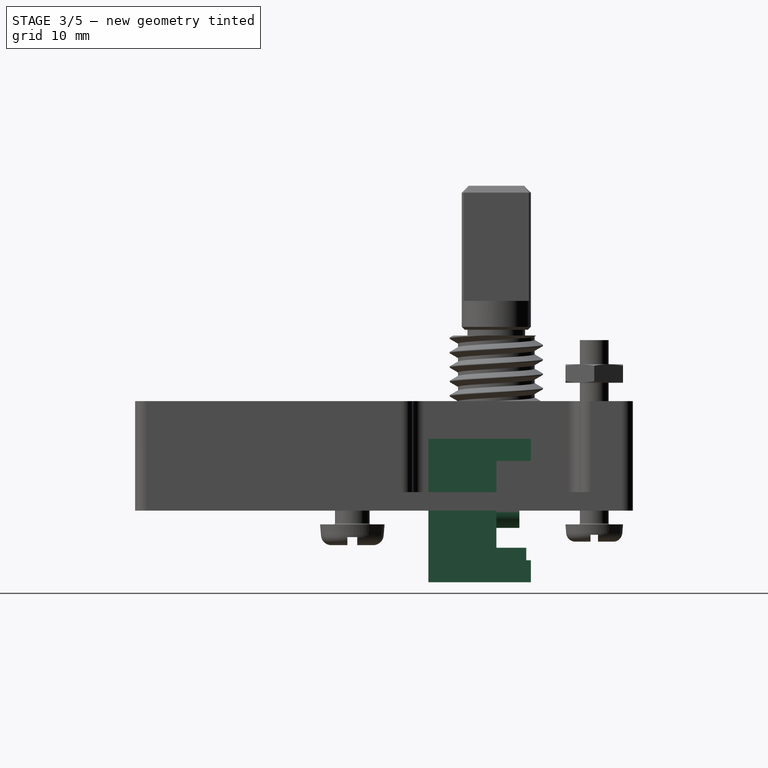
[diagram: stage 3 of 5 — right view after this stage's code; geometry added in this stage tinted green]
FEATURE [Part::Feature] Part__Feature001  label="BTN_A-Brass_pin-5.75mm"
  Placement = pos=(12.7,0,0) rot=(0,0,1;0rad)
  shape: bbox 0.7 x 5.75 x 0.7 mm, 14 faces (baked)
FEATURE [Sketcher::SketchObject] Sketch013
  MapMode = 5
  Placement = pos=(0,0,0) rot=(1,0,0;1.5708rad)
  Support = -> [XZ_Plane004]
  sketch-geometry (4):
    g0: LineSegment StartX=-12.575 StartY=6.225 StartZ=0 EndX=12.575 EndY=6.225 EndZ=0
    g1: LineSegment StartX=12.575 StartY=6.225 StartZ=0 EndX=12.575 EndY=-6.225 EndZ=0
    g2: LineSegment StartX=12.575 StartY=-6.225 StartZ=0 EndX=-12.575 EndY=-6.225 EndZ=0
    g3: LineSegment StartX=-12.575 StartY=-6.225 StartZ=0 EndX=-12.575 EndY=6.225 EndZ=0
  constraints (10):
    c: Coincident(g0,g1)
    c: Coincident(g1,g2)
    c: Coincident(g2,g3)
    c: Coincident(g3,g0)
    c: Horizontal(g2)
    c: Vertical(g1)
    c: DistanceX(g0,g0) = 25.15
    c: DistanceY(g3,g3) = 12.45
    c: Symmetric(g0,g0,g-2)
    c: Symmetric(g2,g0,g-1)
FEATURE [PartDesign::Pad] Pad001
  Length = 5.9
  Length2 = 100
  Placement = pos=(0,0,0) rot=(1,0,0;1.5708rad)
  Profile = -> Sketch013
  Type = 0
FEATURE [Sketcher::SketchObject] Sketch018
  MapMode = 5
  Placement = pos=(0,-5.9,1.3e-15) rot=(1,0,0;1.5708rad)
  Support = -> [Pad001]
  sketch-geometry (11):
    g0: LineSegment StartX=-11 StartY=4.65 StartZ=0 EndX=-1.7 EndY=4.65 EndZ=0
    g1: LineSegment StartX=-1.7 StartY=4.65 StartZ=0 EndX=-1.7 EndY=-4.65 EndZ=0
    g2: LineSegment StartX=-1.7 StartY=-4.65 StartZ=0 EndX=-11 EndY=-4.65 EndZ=0
    g3: LineSegment StartX=-11 StartY=-4.65 StartZ=0 EndX=-11 EndY=4.65 EndZ=0
    g4: LineSegment [constr] StartX=-6.35 StartY=4.65 StartZ=0 EndX=-6.35 EndY=-4.65 EndZ=0
    g5: LineSegment StartX=1.7 StartY=4.65 StartZ=0 EndX=11 EndY=4.65 EndZ=0
    g6: LineSegment StartX=11 StartY=4.65 StartZ=0 EndX=11 EndY=-4.65 EndZ=0
    g7: LineSegment StartX=11 StartY=-4.65 StartZ=0 EndX=1.7 EndY=-4.65 EndZ=0
    g8: LineSegment StartX=1.7 StartY=-4.65 StartZ=0 EndX=1.7 EndY=4.65 EndZ=0
    g9: LineSegment [constr] StartX=6.35 StartY=4.65 StartZ=0 EndX=6.35 EndY=-4.65 EndZ=0
    g10: LineSegment [constr] StartX=-11 StartY=4.65 StartZ=0 EndX=1.7 EndY=4.65 EndZ=0
  constraints (31):
    c: Coincident(g0,g1)
    c: Coincident(g1,g2)
    c: Coincident(g2,g3)
    c: Coincident(g3,g0)
    c: Horizontal(g0)
    c: Horizontal(g2)
    c: Vertical(g1)
    c: DistanceY(g3,g3) = 9.3
    c: DistanceX(g0,g0) = 9.3
    c: Symmetric(g0,g2,g-1)
    c: PointOnObject(g4,g0)
    c: PointOnObject(g4,g2)
    c: Symmetric(g0,g0,g4)
    c: DistanceX(g4,g-1) = 6.35
    c: Coincident(g5,g6)
    c: Coincident(g6,g7)
    c: Coincident(g7,g8)
    c: Coincident(g8,g5)
    c: Horizontal(g5)
    c: Horizontal(g7)
    c: Vertical(g6)
    c: Equal(g3,g8) = 9.3
    c: Equal(g0,g5) = 9.3
    c: PointOnObject(g9,g5)
    c: PointOnObject(g9,g7)
    c: Symmetric(g5,g5,g9)
    c: Coincident(g0,g10)
    c: Coincident(g5,g10)
    c: Distance(g10) = 12.7
    c: Horizontal(g10)
    c: Vertical(g8)
FEATURE [PartDesign::Pocket] Pocket008
  BaseFeature = -> Pad001
  Length = 1.4
  Length2 = 100
  Placement = pos=(0,0,0) rot=(1,0,0;1.5708rad)
  Profile = -> Sketch018
  Type = 0
FEATURE [PartDesign::Chamfer] Chamfer
  Base = -> Pocket008 [Edge17,Edge20,Edge19,Edge18,Edge16,Edge13,Edge14,Edge15]
  BaseFeature = -> Pocket008
  Placement = pos=(0,0,0) rot=(1,0,0;1.5708rad)
  Size = 0.8
FEATURE [Sketcher::SketchObject] Sketch015
  ExternalGeometry = -> [Chamfer]
  MapMode = 5
  Placement = pos=(0,0,0) rot=(-1,0,0;1.5708rad)
  Support = -> [Chamfer]
  sketch-geometry (24):
    g0: LineSegment StartX=12.575 StartY=-4.315 StartZ=0 EndX=12.575 EndY=-6.225 EndZ=0
    g1: LineSegment StartX=12.575 StartY=-6.225 StartZ=0 EndX=10.945 EndY=-6.225 EndZ=0
    g2: LineSegment StartX=10.945 StartY=-6.225 StartZ=0 EndX=10.945 EndY=-5.425 EndZ=0
    g3: LineSegment StartX=10.945 StartY=-5.425 StartZ=0 EndX=11.775 EndY=-5.425 EndZ=0
    g4: LineSegment StartX=11.775 StartY=-5.425 StartZ=0 EndX=11.775 EndY=-4.315 EndZ=0
    g5: LineSegment StartX=11.775 StartY=-4.315 StartZ=0 EndX=12.575 EndY=-4.315 EndZ=0
    g6: LineSegment StartX=-10.945 StartY=-6.225 StartZ=0 EndX=-12.575 EndY=-6.225 EndZ=0
    g7: LineSegment StartX=-12.575 StartY=-6.225 StartZ=0 EndX=-12.575 EndY=-4.315 EndZ=0
    g8: LineSegment StartX=-12.575 StartY=-4.315 StartZ=0 EndX=-11.775 EndY=-4.315 EndZ=0
    g9: LineSegment StartX=-11.775 StartY=-4.315 StartZ=0 EndX=-11.775 EndY=-5.425 EndZ=0
    g10: LineSegment StartX=-11.775 StartY=-5.425 StartZ=0 EndX=-10.945 EndY=-5.425 EndZ=0
    g11: LineSegment StartX=-10.945 StartY=-5.425 StartZ=0 EndX=-10.945 EndY=-6.225 EndZ=0
    g12: LineSegment StartX=12.575 StartY=4.315 StartZ=0 EndX=12.575 EndY=6.225 EndZ=0
    g13: LineSegment StartX=12.575 StartY=6.225 StartZ=0 EndX=10.945 EndY=6.225 EndZ=0
    g14: LineSegment StartX=10.945 StartY=6.225 StartZ=0 EndX=10.945 EndY=5.425 EndZ=0
    g15: LineSegment StartX=10.945 StartY=5.425 StartZ=0 EndX=11.775 EndY=5.425 EndZ=0
    g16: LineSegment StartX=11.775 StartY=5.425 StartZ=0 EndX=11.775 EndY=4.315 EndZ=0
    g17: LineSegment StartX=11.775 StartY=4.315 StartZ=0 EndX=12.575 EndY=4.315 EndZ=0
    g18: LineSegment StartX=-11.775 StartY=4.315 StartZ=0 EndX=-11.775 EndY=5.425 EndZ=0
    g19: LineSegment StartX=-11.775 StartY=5.425 StartZ=0 EndX=-10.945 EndY=5.425 EndZ=0
    g20: LineSegment StartX=-10.945 StartY=5.425 StartZ=0 EndX=-10.945 EndY=6.225 EndZ=0
    g21: LineSegment StartX=-10.945 StartY=6.225 StartZ=0 EndX=-12.575 EndY=6.225 EndZ=0
    g22: LineSegment StartX=-12.575 StartY=6.225 StartZ=0 EndX=-12.575 EndY=4.315 EndZ=0
    g23: LineSegment StartX=-12.575 StartY=4.315 StartZ=0 EndX=-11.775 EndY=4.315 EndZ=0
  constraints (68):
    c: Vertical(g0)
    c: Coincident(g0,g1)
    c: Horizontal(g1)
    c: Coincident(g1,g2)
    c: Vertical(g2)
    c: Coincident(g2,g3)
    c: Horizontal(g3)
    c: Coincident(g3,g4)
    c: Vertical(g4)
    c: Coincident(g4,g5)
    c: Coincident(g5,g0)
    c: Horizontal(g5)
    c: DistanceX(g1,g1) = 1.63
    c: DistanceY(g0,g0) = 1.91
    c: DistanceY(g2,g2) = 0.8
    c: DistanceX(g5,g5) = 0.8
    c: Horizontal(g6)
    c: Coincident(g6,g7)
    c: Vertical(g7)
    c: Coincident(g7,g8)
    c: Horizontal(g8)
    c: Coincident(g8,g9)
    c: Vertical(g9)
    c: Coincident(g9,g10)
    c: Horizontal(g10)
    c: Coincident(g10,g11)
    c: Coincident(g11,g6)
    c: Vertical(g11)
    c: Equal(g6,g1)
    c: Equal(g7,g0)
    c: Equal(g8,g5)
    c: Equal(g11,g2)
    c: Vertical(g12)
    c: Coincident(g12,g13)
    c: Horizontal(g13)
    c: Coincident(g13,g14)
    c: Vertical(g14)
    c: Coincident(g14,g15)
    c: Horizontal(g15)
    c: Coincident(g15,g16)
    c: Vertical(g16)
    c: Coincident(g16,g17)
    c: Horizontal(g17)
    c: Vertical(g18)
    c: Coincident(g18,g19)
    c: Horizontal(g19)
    c: Coincident(g19,g20)
    c: Vertical(g20)
    c: Coincident(g20,g21)
    c: Horizontal(g21)
    c: Coincident(g21,g22)
    c: Vertical(g22)
    c: Coincident(g22,g23)
    c: Coincident(g23,g18)
    c: Horizontal(g23)
    c: Equal(g23,g8)
    c: Equal(g17,g5)
    c: Equal(g14,g20)
    c: Equal(g14,g2)
    c: Equal(g12,g22)
    c: Equal(g21,g13)
    c: Equal(g12,g0)
    c: Equal(g13,g1)
    c: Coincident(g-3,g0)
    c: Coincident(g-4,g6)
    c: Coincident(g-5,g12)
    c: Coincident(g-6,g21)
    c: Coincident(g17,g12)
FEATURE [PartDesign::Pad] Pad003
  BaseFeature = -> Chamfer
  Length = 3
  Length2 = 100
  Placement = pos=(0,0,0) rot=(1,0,0;1.5708rad)
  Profile = -> Sketch015
  Type = 0
FEATURE [Sketcher::SketchObject] Sketch007
  ExternalGeometry = -> [Chamfer]
  MapMode = 5
  Placement = pos=(0,0,0) rot=(-1,0,0;1.5708rad)
  Support = -> [Pad003]
  sketch-geometry (24):
    g0: LineSegment StartX=-9.2875 StartY=6.225 StartZ=0 EndX=-3.2875 EndY=6.225 EndZ=0
    g1: LineSegment StartX=-3.2875 StartY=6.225 StartZ=0 EndX=-3.2875 EndY=3.225 EndZ=0
    g2: LineSegment StartX=-3.2875 StartY=3.225 StartZ=0 EndX=-9.2875 EndY=3.225 EndZ=0
    g3: LineSegment StartX=-9.2875 StartY=3.225 StartZ=0 EndX=-9.2875 EndY=6.225 EndZ=0
    g4: LineSegment [constr] StartX=-12.575 StartY=6.225 StartZ=0 EndX=12.575 EndY=6.225 EndZ=0
    g5: LineSegment [constr] StartX=-12.575 StartY=-6.225 StartZ=0 EndX=12.575 EndY=-6.225 EndZ=0
    g6: GeomPoint X=1e-16 Y=6.225 Z=0
    g7: GeomPoint X=4e-16 Y=-6.225 Z=0
    g8: GeomPoint X=-6.2875 Y=-6.225 Z=0
    g9: GeomPoint X=6.2875 Y=-6.225 Z=0
    g10: GeomPoint X=-6.2875 Y=6.225 Z=0
    g11: GeomPoint X=6.2875 Y=6.225 Z=0
    g12: LineSegment StartX=3.2875 StartY=6.225 StartZ=0 EndX=9.2875 EndY=6.225 EndZ=0
    g13: LineSegment StartX=9.2875 StartY=6.225 StartZ=0 EndX=9.2875 EndY=3.225 EndZ=0
    g14: LineSegment StartX=9.2875 StartY=3.225 StartZ=0 EndX=3.2875 EndY=3.225 EndZ=0
    g15: LineSegment StartX=3.2875 StartY=3.225 StartZ=0 EndX=3.2875 EndY=6.225 EndZ=0
    g16: LineSegment StartX=-9.2875 StartY=-3.225 StartZ=0 EndX=-3.2875 EndY=-3.225 EndZ=0
    g17: LineSegment StartX=-3.2875 StartY=-3.225 StartZ=0 EndX=-3.2875 EndY=-6.225 EndZ=0
    g18: LineSegment StartX=-3.2875 StartY=-6.225 StartZ=0 EndX=-9.2875 EndY=-6.225 EndZ=0
    g19: LineSegment StartX=-9.2875 StartY=-6.225 StartZ=0 EndX=-9.2875 EndY=-3.225 EndZ=0
    g20: LineSegment StartX=3.2875 StartY=-3.225 StartZ=0 EndX=9.2875 EndY=-3.225 EndZ=0
    g21: LineSegment StartX=9.2875 StartY=-3.225 StartZ=0 EndX=9.2875 EndY=-6.225 EndZ=0
    g22: LineSegment StartX=9.2875 StartY=-6.225 StartZ=0 EndX=3.2875 EndY=-6.225 EndZ=0
    g23: LineSegment StartX=3.2875 StartY=-6.225 StartZ=0 EndX=3.2875 EndY=-3.225 EndZ=0
  constraints (54):
    c: Coincident(g0,g1)
    c: Coincident(g1,g2)
    c: Coincident(g2,g3)
    c: Coincident(g3,g0)
    c: Horizontal(g0)
    c: Horizontal(g2)
    c: Vertical(g1)
    c: Vertical(g3)
    c: DistanceX(g0,g0) = 6
    c: DistanceY(g1,g1) = 3
    c: Coincident(g4,g-3)
    c: Coincident(g4,g-4)
    c: Coincident(g5,g-6)
    c: Coincident(g5,g-5)
    c: Symmetric(g4,g4,g6)
    c: Symmetric(g5,g5,g7)
    c: Symmetric(g7,g5,g9)
    c: Symmetric(g5,g7,g8)
    c: Symmetric(g4,g6,g10)
    c: Symmetric(g6,g4,g11)
    c: Symmetric(g0,g0,g10)
    c: Coincident(g12,g13)
    c: Coincident(g13,g14)
    c: Coincident(g14,g15)
    c: Coincident(g15,g12)
    c: Horizontal(g12)
    c: Horizontal(g14)
    c: Vertical(g13)
    c: Vertical(g15)
    c: Coincident(g16,g17)
    c: Coincident(g17,g18)
    c: Coincident(g18,g19)
    c: Coincident(g19,g16)
    c: Horizontal(g16)
    c: Horizontal(g18)
    c: Vertical(g17)
    c: Vertical(g19)
    c: Coincident(g20,g21)
    c: Coincident(g21,g22)
    c: Coincident(g22,g23)
    c: Coincident(g23,g20)
    c: Horizontal(g20)
    c: Horizontal(g22)
    c: Vertical(g21)
    c: Vertical(g23)
    c: Equal(g12,g0)
    c: Equal(g20,g16)
    c: Equal(g16,g0)
    c: Equal(g17,g21)
    c: Equal(g21,g13)
    c: Equal(g13,g1)
    c: Symmetric(g18,g17,g8)
    c: Symmetric(g22,g21,g9)
    c: Symmetric(g12,g12,g11)
FEATURE [PartDesign::Pad] Pad004
  BaseFeature = -> Pad003
  Length = 2.6
  Length2 = 100
  Placement = pos=(0,0,0) rot=(1,0,0;1.5708rad)
  Profile = -> Sketch007
  Type = 0
FEATURE [PartDesign::Body] Body002  label="ButtonRightBody"
  Group = -> [Sketch011,Pad002,Chamfer002]
  Origin = -> Origin002
  Tip = -> Chamfer002
FEATURE [Part::Feature] Part__Feature  label="COMMON-Brass_pin-5.75mm"
  Placement = pos=(20.32,0,0) rot=(0,0,1;0rad)
  shape: bbox 0.7 x 5.75 x 0.7 mm, 14 faces (baked)
FEATURE [PartDesign::Body] Body003  label="PCBBody"
  Group = -> [Sketch012,Pad008]
  Origin = -> Origin003
  Tip = -> Pad008
FEATURE [Part::Feature] Part__Feature002  label="BTN_B-Brass_pin-5.75mm"
  shape: bbox 0.7 x 5.75 x 0.7 mm, 14 faces (baked)
FEATURE [PartDesign::Pad] Pad005
  BaseFeature = -> Pad004
  Length = 2
  Length2 = 100
  Placement = pos=(0,0,0) rot=(1,0,0;1.5708rad)
  Profile = -> Sketch008
  Type = 0
FEATURE [Part::FeaturePython] Screw  label="M3x10-Screw"  # Fasteners workbench fastener (typed FeaturePython)
  Placement = pos=(-11,-12.5,-1.2) rot=(0,1,0;3.14159rad)
  diameter = 4
  invert = false
  length = 3
  lengthCustom = 10
  matchOuter = false
  offset = 0
  thread = false
  type = 11
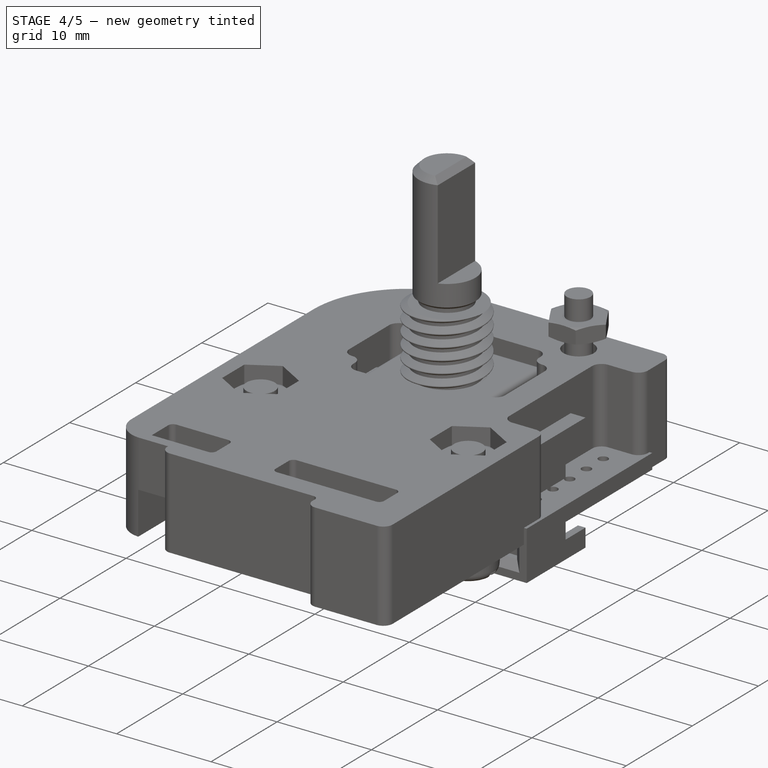
[diagram: stage 4 of 5 — iso view after this stage's code; geometry added in this stage tinted green]
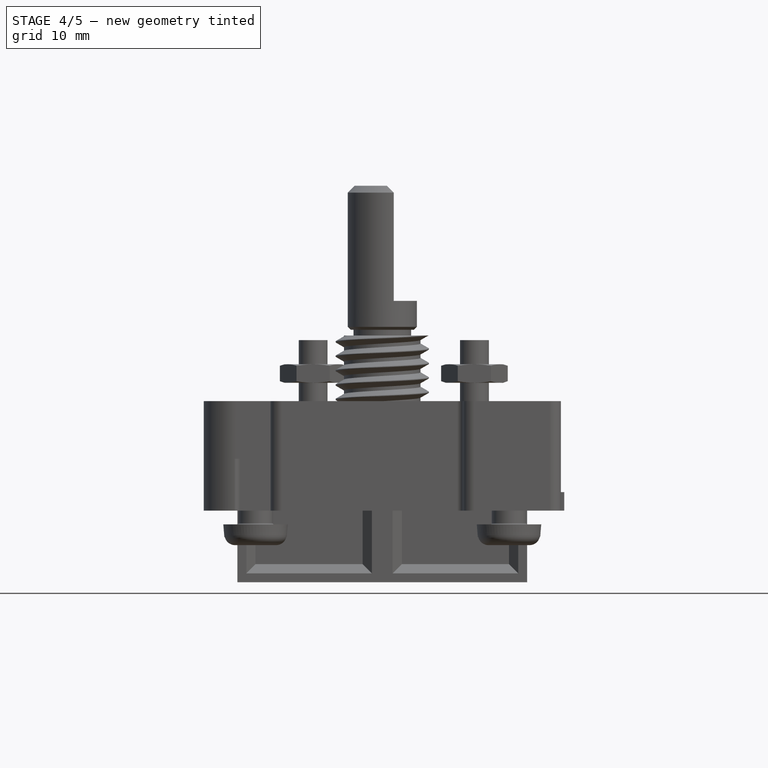
[diagram: stage 4 of 5 — front view after this stage's code; geometry added in this stage tinted green]
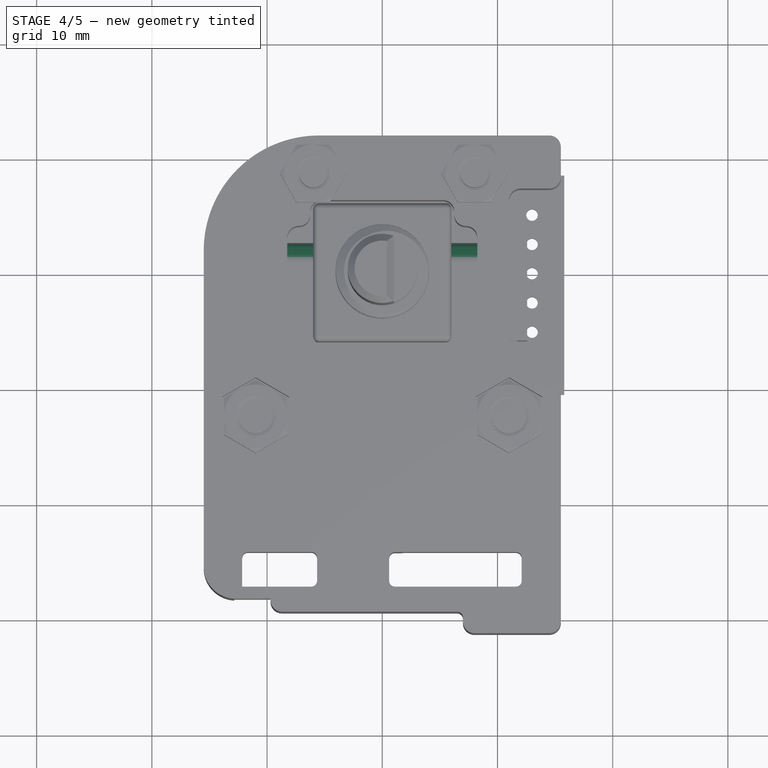
[diagram: stage 4 of 5 — top view after this stage's code; geometry added in this stage tinted green]
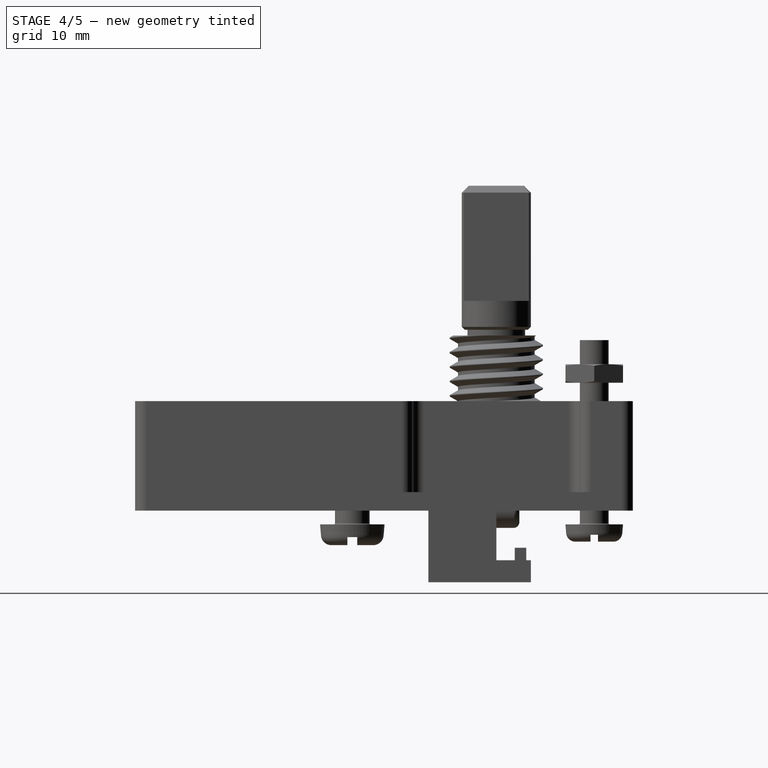
[diagram: stage 4 of 5 — right view after this stage's code; geometry added in this stage tinted green]
FEATURE [PartDesign::Fillet] Fillet004
  Base = -> Pad005 [Edge179]
  BaseFeature = -> Pad005
  Placement = pos=(0,0,0) rot=(1,0,0;1.5708rad)
  Radius = 0.5
FEATURE [PartDesign::Chamfer] Chamfer003
  Base = -> Fillet004 [Edge146,Edge147,Edge130,Edge129]
  BaseFeature = -> Fillet004
  Placement = pos=(0,0,0) rot=(1,0,0;1.5708rad)
  Size = 1.3
FEATURE [Sketcher::SketchObject] Sketch017
  MapMode = 5
  Support = -> [XY_Plane004]
  sketch-geometry (8):
    g0: LineSegment StartX=-10.375 StartY=5.5 StartZ=0 EndX=10.375 EndY=5.5 EndZ=0
    g1: LineSegment StartX=11.375 StartY=4.5 StartZ=0 EndX=11.375 EndY=1 EndZ=0
    g2: LineSegment StartX=10.375 StartY=0 StartZ=0 EndX=-10.375 EndY=0 EndZ=0
    g3: LineSegment StartX=-11.375 StartY=1 StartZ=0 EndX=-11.375 EndY=4.5 EndZ=0
    g4: ArcOfCircle CenterX=-10.375 CenterY=4.5 CenterZ=0 NormalX=0 NormalY=0 NormalZ=1 AngleXU=0 Radius=1 StartAngle=1.5708 EndAngle=3.14159
    g5: ArcOfCircle CenterX=10.375 CenterY=4.5 CenterZ=0 NormalX=0 NormalY=0 NormalZ=1 AngleXU=0 Radius=1 StartAngle=0 EndAngle=1.5708
    g6: ArcOfCircle CenterX=10.375 CenterY=1 CenterZ=0 NormalX=0 NormalY=0 NormalZ=1 AngleXU=0 Radius=1 StartAngle=4.71239 EndAngle=6.28319
    g7: ArcOfCircle CenterX=-10.375 CenterY=1 CenterZ=0 NormalX=0 NormalY=0 NormalZ=1 AngleXU=0 Radius=1 StartAngle=3.14159 EndAngle=4.71239
  constraints (19):
    c: Horizontal(g2)
    c: Vertical(g1)
    c: Vertical(g3)
    c: Tangent(g3,g4) = 1.5708
    c: Tangent(g0,g4) = 1.5708
    c: Tangent(g0,g5) = 1.5708
    c: Tangent(g1,g5) = 1.5708
    c: Tangent(g1,g6) = 1.5708
    c: Tangent(g2,g6) = 1.5708
    c: Tangent(g2,g7) = 1.5708
    c: Tangent(g3,g7) = 1.5708
    c: Radius(g4) = 1
    c: Equal(g5,g6)
    c: Equal(g6,g7)
    c: Equal(g7,g4)
    c: Symmetric(g0,g0,g-2)
    c: PointOnObject(g-1,g2)
    c: DistanceY(g-1,g0) = 5.5
    c: DistanceX(g3,g1) = 22.75
FEATURE [PartDesign::Pad] Pad007  label="LabelPad"
  Length = 0.05
  Length2 = 100
  Profile = -> Sketch017
  Type = 0
FEATURE [PartDesign::Fillet] Fillet005
  Base = -> Chamfer003 [Edge10,Edge151,Edge156,Edge158]
  BaseFeature = -> Chamfer003
  Placement = pos=(0,0,0) rot=(1,0,0;1.5708rad)
  Radius = 1.5
FEATURE [PartDesign::Fillet] Fillet003
  Base = -> Fillet005 [Edge164,Edge165,Edge145,Edge9]
  BaseFeature = -> Fillet005
  Placement = pos=(0,0,0) rot=(1,0,0;1.5708rad)
  Radius = 1
FEATURE [Sketcher::SketchObject] Sketch009
  ExternalGeometry = -> [Fillet003]
  MapMode = 5
  Placement = pos=(0,5.2e-15,3.225) rot=(1,0,0;3.14159rad)
  Support = -> [Fillet003]
  sketch-geometry (4):
    g0: LineSegment StartX=-9.2875 StartY=2e-16 StartZ=0 EndX=-3.2875 EndY=2e-16 EndZ=0
    g1: LineSegment StartX=-3.2875 StartY=2e-16 StartZ=0 EndX=-3.2875 EndY=-1.6 EndZ=0
    g2: LineSegment StartX=-3.2875 StartY=-1.6 StartZ=0 EndX=-9.2875 EndY=-1.6 EndZ=0
    g3: LineSegment StartX=-9.2875 StartY=-1.6 StartZ=0 EndX=-9.2875 EndY=2e-16 EndZ=0
  constraints (10):
    c: Coincident(g0,g1)
    c: Coincident(g1,g2)
    c: Coincident(g2,g3)
    c: Coincident(g3,g0)
    c: Vertical(g1)
    c: Coincident(g0,g-3)
    c: DistanceY(g1,g1) = 1.6
    c: Equal(g3,g1)
    c: Equal(g2,g0)
    c: Coincident(g0,g-4)
FEATURE [PartDesign::Pocket] Pocket006
  BaseFeature = -> Fillet003
  Length = 1.8
  Length2 = 100
  Placement = pos=(0,0,0) rot=(1,0,0;1.5708rad)
  Profile = -> Sketch009
  Type = 0
FEATURE [Sketcher::SketchObject] Sketch010
  ExternalGeometry = -> [Pocket006]
  MapMode = 5
  Placement = pos=(0,5.2e-15,3.225) rot=(1,0,0;3.14159rad)
  Support = -> [Pocket006]
  sketch-geometry (4):
    g0: LineSegment StartX=3.2875 StartY=0 StartZ=0 EndX=9.2875 EndY=2e-16 EndZ=0
    g1: LineSegment StartX=9.2875 StartY=2e-16 StartZ=0 EndX=9.2875 EndY=-1.6 EndZ=0
    g2: LineSegment StartX=9.2875 StartY=-1.6 StartZ=0 EndX=3.2875 EndY=-1.6 EndZ=0
    g3: LineSegment StartX=3.2875 StartY=-1.6 StartZ=0 EndX=3.2875 EndY=0 EndZ=0
  constraints (10):
    c: Coincident(g0,g1)
    c: Coincident(g1,g2)
    c: Coincident(g2,g3)
    c: Coincident(g3,g0)
    c: Horizontal(g2)
    c: Vertical(g1)
    c: Vertical(g3)
    c: Coincident(g0,g-3)
    c: Coincident(g0,g-4)
    c: DistanceY(g1,g1) = 1.6
FEATURE [PartDesign::Pocket] Pocket007
  BaseFeature = -> Pocket006
  Length = 1.8
  Length2 = 100
  Placement = pos=(0,0,0) rot=(1,0,0;1.5708rad)
  Profile = -> Sketch010
  Type = 0
FEATURE [PartDesign::Plane] DatumPlane001
  Length = 24.4855
  MapMode = 45
  Placement = pos=(-1.37e-14,1.3,-3.225) rot=(0,0,1;1.5708rad)
  ResizeMode = 0
  Support = -> [Pocket007]
  Width = 29.6355
FEATURE [Sketcher::SketchObject] Sketch014
  ExternalGeometry = -> [Pocket007]
  MapMode = 5
  Placement = pos=(-1.37e-14,1.3,-3.225) rot=(0,0,1;1.5708rad)
  Support = -> [DatumPlane001]
  sketch-geometry (8):
    g0: LineSegment StartX=-1.3 StartY=9.2875 StartZ=0 EndX=0.3 EndY=9.2875 EndZ=0
    g1: LineSegment StartX=0.3 StartY=9.2875 StartZ=0 EndX=0.3 EndY=3.2875 EndZ=0
    g2: LineSegment StartX=0.3 StartY=3.2875 StartZ=0 EndX=-1.3 EndY=3.2875 EndZ=0
    g3: LineSegment StartX=-1.3 StartY=3.2875 StartZ=0 EndX=-1.3 EndY=9.2875 EndZ=0
    g4: LineSegment StartX=-1.3 StartY=-3.2875 StartZ=0 EndX=0.3 EndY=-3.2875 EndZ=0
    g5: LineSegment StartX=0.3 StartY=-3.2875 StartZ=0 EndX=0.3 EndY=-9.2875 EndZ=0
    g6: LineSegment StartX=0.3 StartY=-9.2875 StartZ=0 EndX=-1.3 EndY=-9.2875 EndZ=0
    g7: LineSegment StartX=-1.3 StartY=-9.2875 StartZ=0 EndX=-1.3 EndY=-3.2875 EndZ=0
  constraints (20):
    c: Coincident(g0,g1)
    c: Coincident(g1,g2)
    c: Coincident(g2,g3)
    c: Coincident(g3,g0)
    c: Horizontal(g0)
    c: Horizontal(g2)
    c: Vertical(g1)
    c: Coincident(g0,g-3)
    c: Coincident(g4,g5)
    c: Coincident(g5,g6)
    c: Coincident(g6,g7)
    c: Coincident(g7,g4)
    c: Horizontal(g4)
    c: Horizontal(g6)
    c: Vertical(g5)
    c: Coincident(g4,g-5)
    c: Coincident(g2,g-4)
    c: Coincident(g6,g-6)
    c: DistanceX(g4,g4) = 1.6
    c: Equal(g4,g2)
FEATURE [PartDesign::Pocket] Pocket005  label="BodyFinal_pad"
  BaseFeature = -> Pocket007
  Length = 1.8
  Length2 = 100
  Placement = pos=(0,0,0) rot=(1,0,0;1.5708rad)
  Profile = -> Sketch014
  Type = 0
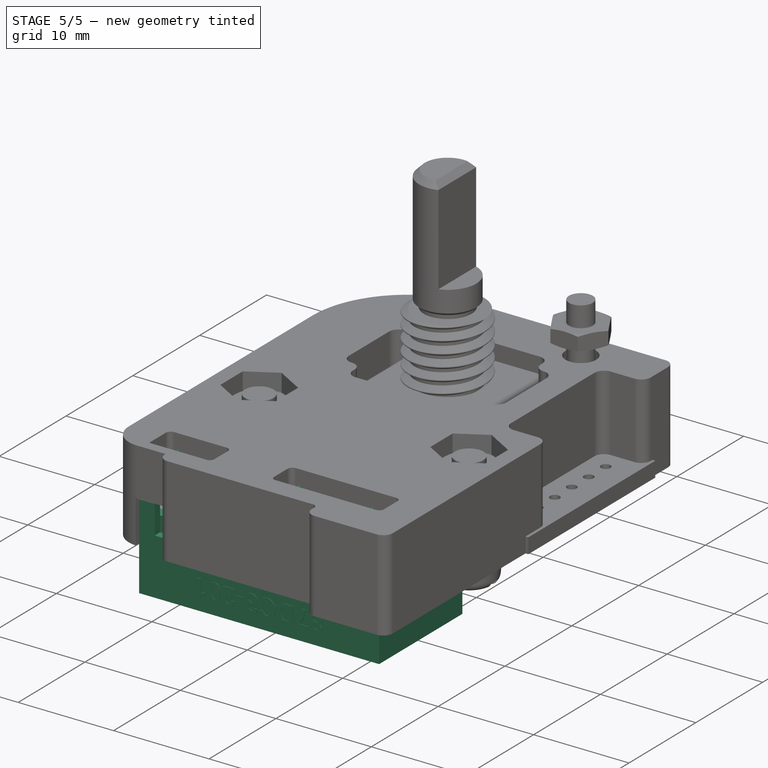
[diagram: stage 5 of 5 — iso view after this stage's code; geometry added in this stage tinted green]
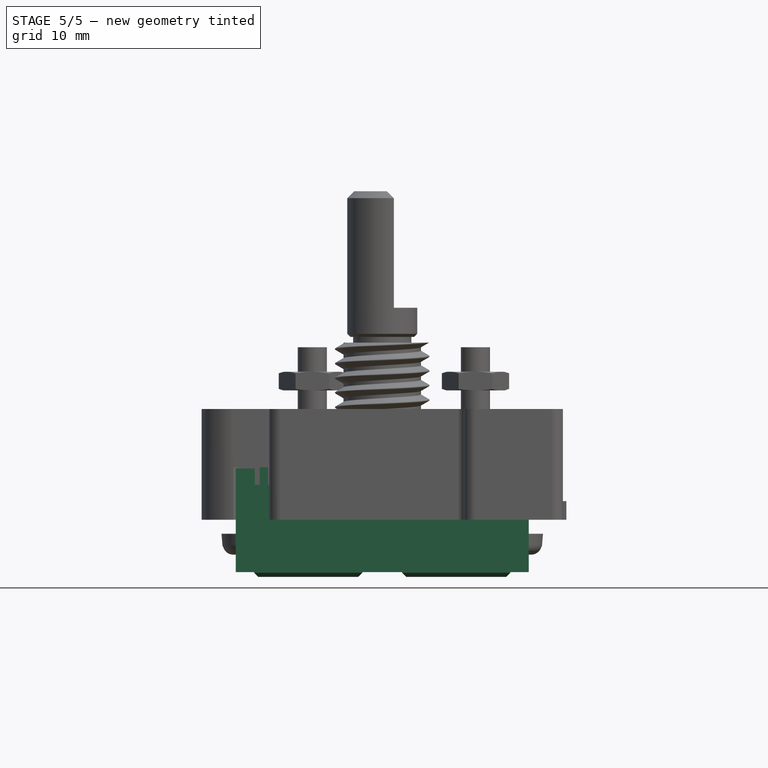
[diagram: stage 5 of 5 — front view after this stage's code; geometry added in this stage tinted green]
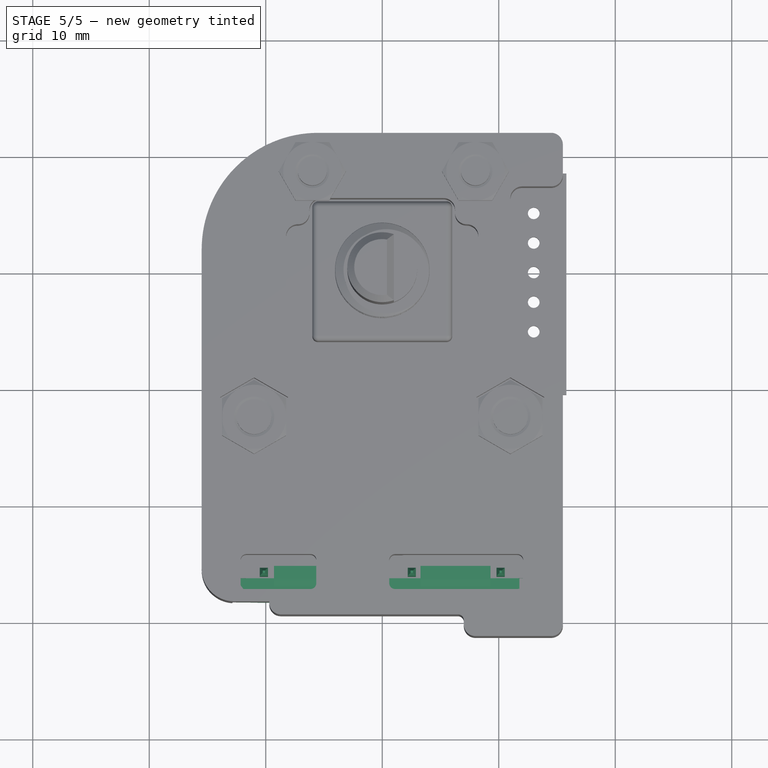
[diagram: stage 5 of 5 — top view after this stage's code; geometry added in this stage tinted green]
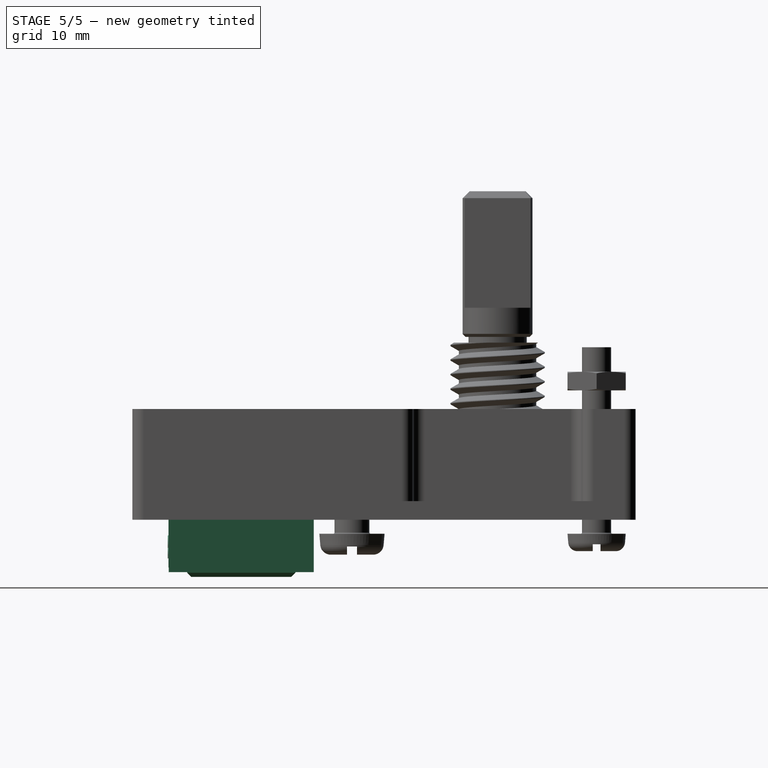
[diagram: stage 5 of 5 — right view after this stage's code; geometry added in this stage tinted green]
FEATURE [Sketcher::SketchObject] Sketch012
  MapMode = 5
  Placement = pos=(0,0,0) rot=(1,0,0;1.5708rad)
  Support = -> [XZ_Plane003]
  sketch-geometry (12):
    g0: LineSegment StartX=-11.725 StartY=5.425 StartZ=0 EndX=11.725 EndY=5.425 EndZ=0
    g1: LineSegment StartX=11.725 StartY=5.425 StartZ=0 EndX=11.725 EndY=4.275 EndZ=0
    g2: LineSegment StartX=11.725 StartY=4.275 StartZ=0 EndX=12.575 EndY=4.275 EndZ=0
    g3: LineSegment StartX=12.575 StartY=4.275 StartZ=0 EndX=12.575 EndY=-4.275 EndZ=0
    g4: LineSegment StartX=12.575 StartY=-4.275 StartZ=0 EndX=11.725 EndY=-4.275 EndZ=0
    g5: LineSegment StartX=11.725 StartY=-4.275 StartZ=0 EndX=11.725 EndY=-5.425 EndZ=0
    g6: LineSegment StartX=11.725 StartY=-5.425 StartZ=0 EndX=-11.725 EndY=-5.425 EndZ=0
    g7: LineSegment StartX=-11.725 StartY=-5.425 StartZ=0 EndX=-11.725 EndY=-4.275 EndZ=0
    g8: LineSegment StartX=-11.725 StartY=-4.275 StartZ=0 EndX=-12.575 EndY=-4.275 EndZ=0
    g9: LineSegment StartX=-12.575 StartY=-4.275 StartZ=0 EndX=-12.575 EndY=4.275 EndZ=0
    g10: LineSegment StartX=-12.575 StartY=4.275 StartZ=0 EndX=-11.725 EndY=4.275 EndZ=0
    g11: LineSegment StartX=-11.725 StartY=4.275 StartZ=0 EndX=-11.725 EndY=5.425 EndZ=0
  constraints (34):
    c: Horizontal(g0)
    c: Coincident(g0,g1)
    c: Vertical(g1)
    c: Coincident(g1,g2)
    c: Horizontal(g2)
    c: Coincident(g2,g3)
    c: Vertical(g3)
    c: Coincident(g3,g4)
    c: Horizontal(g4)
    c: Coincident(g4,g5)
    c: Vertical(g5)
    c: Coincident(g5,g6)
    c: Coincident(g6,g7)
    c: Vertical(g7)
    c: Coincident(g7,g8)
    c: Horizontal(g8)
    c: Coincident(g8,g9)
    c: Coincident(g9,g10)
    c: Coincident(g10,g11)
    c: Coincident(g11,g0)
    c: Equal(g11,g1)
    c: Equal(g1,g5)
    c: Equal(g5,g7)
    c: Equal(g2,g4)
    c: Equal(g4,g8)
    c: Equal(g8,g10)
    c: Equal(g3,g9)
    c: Equal(g0,g6)
    c: DistanceX(g9,g2) = 25.15
    c: DistanceY(g5,g0) = 10.85
    c: DistanceX(g10,g10) = 0.85
    c: DistanceY(g11,g11) = 1.15
    c: Symmetric(g6,g6,g-2)
    c: Symmetric(g9,g9,g-1)
FEATURE [PartDesign::Pad] Pad008  label="PCBPad"
  Length = 1.6
  Length2 = 100
  Placement = pos=(0,0,0) rot=(1,0,0;1.5708rad)
  Profile = -> Sketch012
  Reversed = true
  Type = 0
FEATURE [PartDesign::Plane] DatumPlane
  Length = 29.6355
  MapMode = 5
  Placement = pos=(0,-4.5,3.4e-15) rot=(1,0,0;1.5708rad)
  ResizeMode = 0
  Support = -> [Chamfer]
  Width = 24.4855
FEATURE [Sketcher::SketchObject] Sketch011  label="SketchRightBtn"
  MapMode = 5
  Placement = pos=(0,-4.5,3.4e-15) rot=(1,0,0;1.5708rad)
  Support = -> [DatumPlane]
  sketch-geometry (5):
    g0: LineSegment StartX=1.7 StartY=4.65 StartZ=0 EndX=11 EndY=4.65 EndZ=0
    g1: LineSegment StartX=11 StartY=4.65 StartZ=0 EndX=11 EndY=-4.65 EndZ=0
    g2: LineSegment StartX=11 StartY=-4.65 StartZ=0 EndX=1.7 EndY=-4.65 EndZ=0
    g3: LineSegment StartX=1.7 StartY=-4.65 StartZ=0 EndX=1.7 EndY=4.65 EndZ=0
    g4: LineSegment [constr] StartX=6.35 StartY=4.65 StartZ=0 EndX=6.35 EndY=-4.65 EndZ=0
  constraints (14):
    c: Coincident(g0,g1)
    c: Coincident(g1,g2)
    c: Coincident(g2,g3)
    c: Coincident(g3,g0)
    c: Horizontal(g0)
    c: Horizontal(g2)
    c: Vertical(g1)
    c: DistanceY(g3,g3) = 9.3
    c: DistanceX(g0,g0) = 9.3
    c: Symmetric(g0,g2,g-1)
    c: PointOnObject(g4,g0)
    c: PointOnObject(g4,g2)
    c: Symmetric(g0,g0,g4)
    c: DistanceX(g4,g-1) = -6.35
FEATURE [PartDesign::Pad] Pad002
  Length = 1.8
  Length2 = 100
  Placement = pos=(0,-4.5,5e-15) rot=(1,0,0;1.5708rad)
  Profile = -> Sketch011
  Type = 0
FEATURE [Sketcher::SketchObject] Sketch008
  MapMode = 5
  Placement = pos=(0,0,0) rot=(-1,0,0;1.5708rad)
  Support = -> [Pad004]
  sketch-geometry (1):
    g0: Circle CenterX=0 CenterY=0 CenterZ=0 NormalX=0 NormalY=0 NormalZ=1 AngleXU=0 Radius=1.5
  constraints (2):
    c: Coincident(g0,g-1)
    c: Diameter(g0) = 3
FEATURE [Sketcher::SketchObject] Sketch016  label="SketchLeftBtn"
  MapMode = 5
  Placement = pos=(0,-4.5,3.4e-15) rot=(1,0,0;1.5708rad)
  Support = -> [DatumPlane]
  sketch-geometry (5):
    g0: LineSegment StartX=-11 StartY=4.65 StartZ=0 EndX=-1.7 EndY=4.65 EndZ=0
    g1: LineSegment StartX=-1.7 StartY=4.65 StartZ=0 EndX=-1.7 EndY=-4.65 EndZ=0
    g2: LineSegment StartX=-1.7 StartY=-4.65 StartZ=0 EndX=-11 EndY=-4.65 EndZ=0
    g3: LineSegment StartX=-11 StartY=-4.65 StartZ=0 EndX=-11 EndY=4.65 EndZ=0
    g4: LineSegment [constr] StartX=-6.35 StartY=4.65 StartZ=0 EndX=-6.35 EndY=-4.65 EndZ=0
  constraints (14):
    c: Coincident(g0,g1)
    c: Coincident(g1,g2)
    c: Coincident(g2,g3)
    c: Coincident(g3,g0)
    c: Horizontal(g0)
    c: Horizontal(g2)
    c: Vertical(g1)
    c: DistanceY(g3,g3) = 9.3
    c: DistanceX(g0,g0) = 9.3
    c: Symmetric(g0,g2,g-1)
    c: PointOnObject(g4,g0)
    c: PointOnObject(g4,g2)
    c: Symmetric(g0,g0,g4)
    c: DistanceX(g4,g-1) = 6.35
FEATURE [PartDesign::Pad] Pad006
  Length = 1.8
  Length2 = 100
  Placement = pos=(0,-4.5,5e-15) rot=(1,0,0;1.5708rad)
  Profile = -> Sketch016
  Type = 0
FEATURE [PartDesign::Chamfer] Chamfer001  label="BtnLeftChamfer"
  Base = -> Pad006 [Face6]
  BaseFeature = -> Pad006
  Placement = pos=(0,-4.5,5e-15) rot=(1,0,0;1.5708rad)
  Size = 0.35
FEATURE [PartDesign::Body] Body001  label="ButtonLeftBody"
  Group = -> [Sketch016,Pad006,Chamfer001]
  Origin = -> Origin001
  Tip = -> Chamfer001
FEATURE [PartDesign::Chamfer] Chamfer002  label="BtnRightChamfer"
  Base = -> Pad002 [Face6]
  BaseFeature = -> Pad002
  Placement = pos=(0,-4.5,5e-15) rot=(1,0,0;1.5708rad)
  Size = 0.35
FEATURE [PartDesign::FeatureBase] BaseFeature
  BaseFeature = -> Pad007
FEATURE [PartDesign::Body] Body004  label="LabelBody"
  BaseFeature = -> Pad007
  Group = -> [BaseFeature]
  Origin = -> Origin004
  Placement = pos=(0,0,6.2) rot=(0,0,1;3.14159rad)
  Tip = -> BaseFeature
FEATURE [Part::Part2DObjectPython] ShapeString  label="LabelTextShapeString"  # Draft 2D object (typed FeaturePython)
  AttachmentOffset = pos=(-6.75,2.8,0.01) rot=(0,0,1;0rad)
  FontFile = <path>
  MapMode = 5
  Placement = pos=(-6.75,2.8,0.06) rot=(0,0,1;0rad)
  Size = 1
  String = 87DC3-201
  Support = -> [Pad007]
  Tracking = 0.05
FEATURE [Part::Extrusion] Extrude  label="LabelTextExtrude"
  Base = -> ShapeString
  Dir = (0,0,1)
  DirMode = 2
  FaceMakerClass = Part::FaceMakerBullseye
  LengthFwd = 0.05
  LengthRev = 0
  Placement = pos=(0,0,6.2) rot=(0,0,1;3.14159rad)
  Solid = true
  Symmetric = false
FEATURE [PartDesign::Body] Body005  label="87DC3-201Body"
  Group = -> [Sketch013,Pad001,Sketch018,Pocket008,Chamfer,DatumPlane,Sketch015,Pad003,Sketch007,Pad004,Sketch008,Pad005,Fillet004,Chamfer003,Fillet005,Fillet003,Sketch009,Pocket006,Sketch010,Pocket007,DatumPlane001,Sketch014,Pocket005]
  Origin = -> Origin006
  Tip = -> Pocket005
FEATURE [Part::Compound] Compound  label="Compound_Grayhill_87DC3-201"
  Links = -> [Body005,Body002,Body004,Body001,Pad007,Part__Feature001,Part__Feature,Body003,Part__Feature002,Extrude]
  Placement = pos=(0,-22,1.4) rot=(1,0,0;1.5708rad)
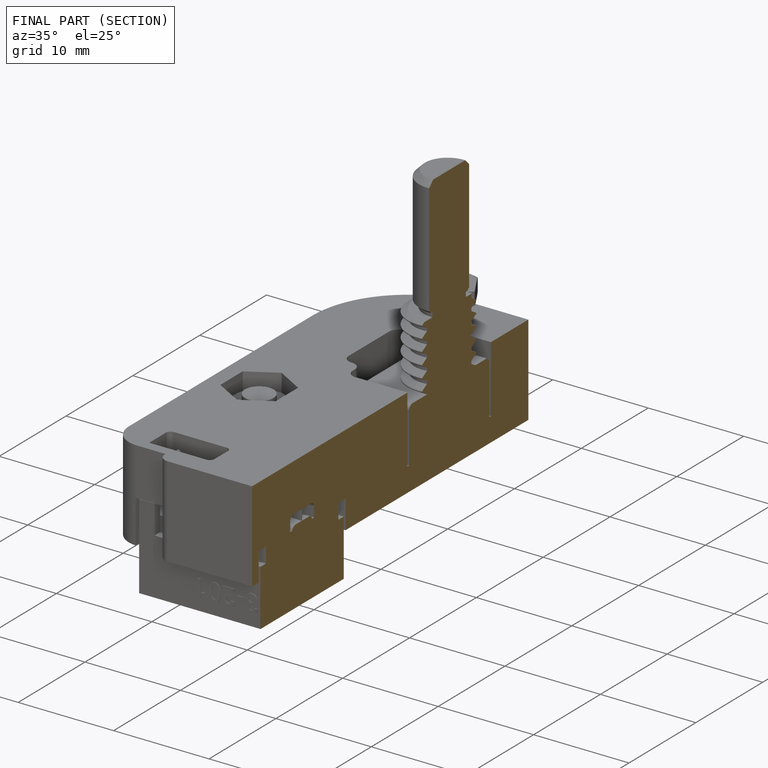
[diagram: finished part — half-section view (interior)]
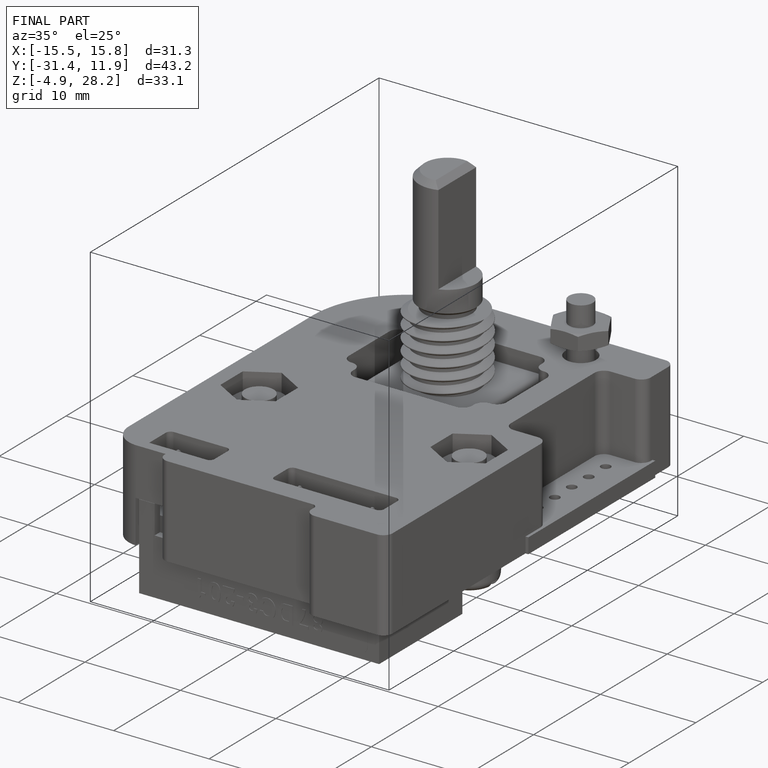
[diagram: finished part — iso view with bounding-box wireframe]
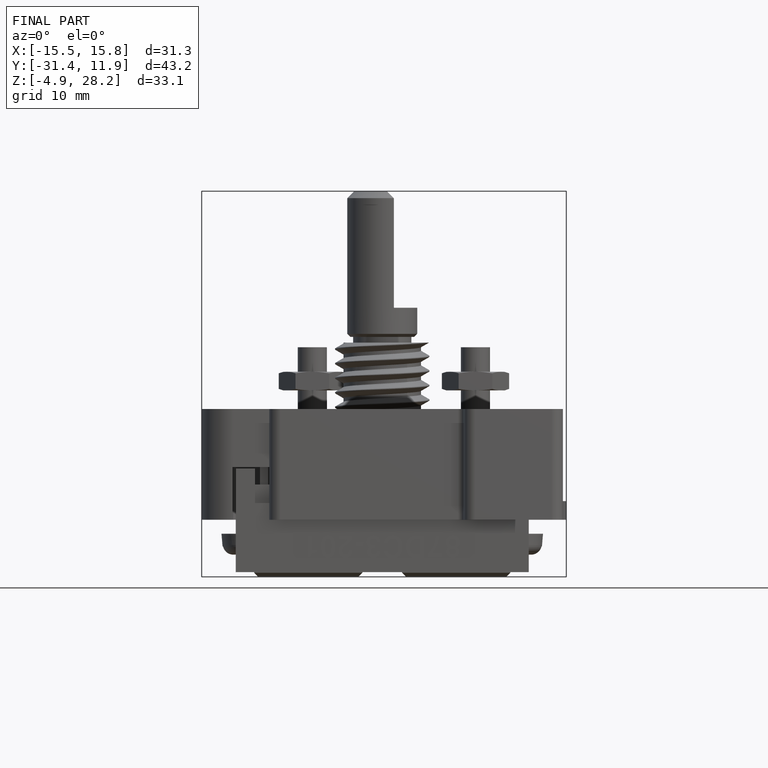
[diagram: finished part — front view with bounding-box wireframe]
